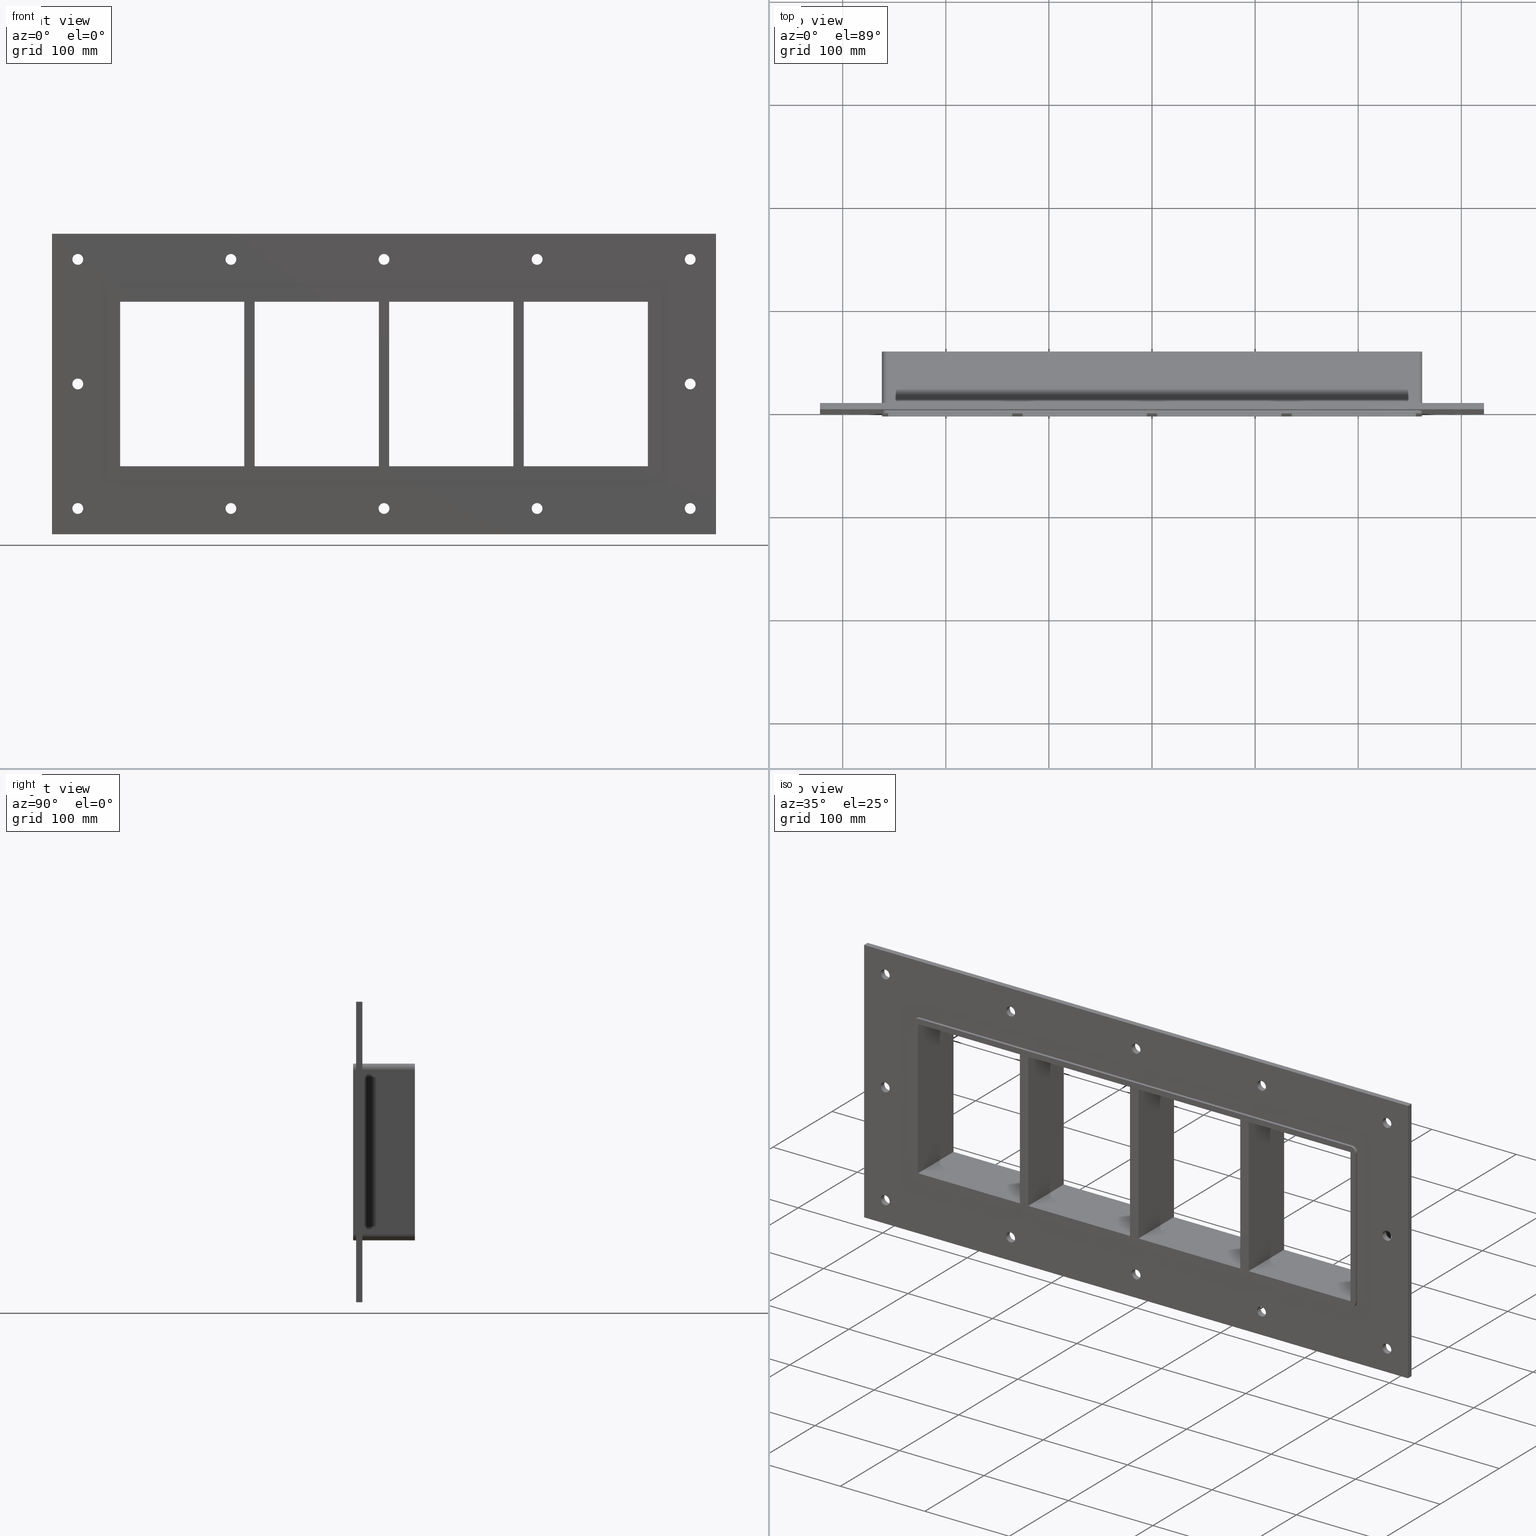
[diagram: canonical four-view strip — front | top / right | iso, engineering-drawing reading convention]
A machine part, canonical four-view strip (front | top / right | iso — engineering-drawing reading convention). The complete STEP part file that produces these views, byte-faithful:
ISO-10303-21;
HEADER;
/****************************************************************
 * Generated by software with PDElib inside                    *
 * PDElib Version v51a, created Wed 11/30/2011                  *
 * ITI Transcendata (http://www.transcendata.com/)              *
 ****************************************************************/
FILE_DESCRIPTION((''),'2;1');
FILE_NAME('L:\\roxtec-se\\Projects\\Ongoing_Projects\\12403 Transit Designer\\Product-data\\Product Data\\Transit designer Cad Generator\\CreatedFiles\\STEP\\GH4X4.stp','2015-01-13T14:12:58',(''),(''),'Autodesk Inventor 2013','Autodesk Inventor 2013','');
FILE_SCHEMA(('AUTOMOTIVE_DESIGN { 1 0 10303 214 1 1 1 1 }'));
ENDSEC;
DATA;
#5=APPLICATION_CONTEXT('automotive design');
#6=APPLICATION_PROTOCOL_DEFINITION('International Standard','automotive_design',2001,#5);
#7=PRODUCT_CONTEXT('',#5,'mechanical');
#8=PRODUCT('GH-ISO','GH-ISO',$,(#7));
#9=PRODUCT_RELATED_PRODUCT_CATEGORY('part',$,(#8));
#10=PRODUCT_DEFINITION_FORMATION('',$,#8);
#11=PRODUCT_DEFINITION_CONTEXT('part definition',#5,'design');
#12=PRODUCT_DEFINITION('',$,#10,#11);
#18=(NAMED_UNIT(*)PLANE_ANGLE_UNIT()SI_UNIT($,.RADIAN.));
#19=DIMENSIONAL_EXPONENTS(0.0,0.0,0.0,0.0,0.0,0.0,0.0);
#20=PLANE_ANGLE_MEASURE_WITH_UNIT(PLANE_ANGLE_MEASURE(0.0174532925),#18);
#24=(CONVERSION_BASED_UNIT('DEGREE',#20)NAMED_UNIT(#19)PLANE_ANGLE_UNIT());
#28=(NAMED_UNIT(*)SI_UNIT($,.STERADIAN.)SOLID_ANGLE_UNIT());
#32=(LENGTH_UNIT()NAMED_UNIT(*)SI_UNIT(.MILLI.,.METRE.));
#34=UNCERTAINTY_MEASURE_WITH_UNIT(LENGTH_MEASURE(0.01),#32,'DISTANCE_ACCURACY_VALUE','');
#36=(GEOMETRIC_REPRESENTATION_CONTEXT(3)GLOBAL_UNCERTAINTY_ASSIGNED_CONTEXT((#34))GLOBAL_UNIT_ASSIGNED_CONTEXT((#24,#28,#32))REPRESENTATION_CONTEXT('None','None'));
#37=AXIS2_PLACEMENT_3D('',#38,#39,#40);
#38=CARTESIAN_POINT('',(0.0,0.0,0.0));
#39=DIRECTION('',(0.0,0.0,1.0));
#40=DIRECTION('',(1.0,0.0,0.0));
#41=SHAPE_REPRESENTATION('',(#37),#36);
#42=PRODUCT_DEFINITION_SHAPE('','',#12);
#43=SHAPE_DEFINITION_REPRESENTATION(#42,#41);
#49=(NAMED_UNIT(*)PLANE_ANGLE_UNIT()SI_UNIT($,.RADIAN.));
#50=DIMENSIONAL_EXPONENTS(0.0,0.0,0.0,0.0,0.0,0.0,0.0);
#51=PLANE_ANGLE_MEASURE_WITH_UNIT(PLANE_ANGLE_MEASURE(0.0174532925),#49);
#55=(CONVERSION_BASED_UNIT('DEGREE',#51)NAMED_UNIT(#50)PLANE_ANGLE_UNIT());
#59=(NAMED_UNIT(*)SI_UNIT($,.STERADIAN.)SOLID_ANGLE_UNIT());
#63=(LENGTH_UNIT()NAMED_UNIT(*)SI_UNIT(.MILLI.,.METRE.));
#65=UNCERTAINTY_MEASURE_WITH_UNIT(LENGTH_MEASURE(0.000001),#63,'DISTANCE_ACCURACY_VALUE','');
#67=(GEOMETRIC_REPRESENTATION_CONTEXT(3)GLOBAL_UNCERTAINTY_ASSIGNED_CONTEXT((#65))GLOBAL_UNIT_ASSIGNED_CONTEXT((#55,#59,#63))REPRESENTATION_CONTEXT('','3D'));
#68=CARTESIAN_POINT('',(-297.00000000000011,709.44221047242468,-120.74999999999997));
#69=DIRECTION('',(0.0,-1.0,0.0));
#70=DIRECTION('',(1.0,0.0,0.0));
#71=AXIS2_PLACEMENT_3D('',#68,#69,#70);
#72=CYLINDRICAL_SURFACE('',#71,5.25);
#73=CARTESIAN_POINT('',(-302.25000000000011,5.999999999999943,-120.74999999999997));
#74=VERTEX_POINT('',#73);
#75=CARTESIAN_POINT('',(-297.00000000000011,5.999999999999943,-120.74999999999997));
#76=DIRECTION('',(0.0,-1.0,0.0));
#77=DIRECTION('',(1.0,0.0,0.0));
#78=AXIS2_PLACEMENT_3D('',#75,#76,#77);
#79=CIRCLE('',#78,5.25);
#80=EDGE_CURVE('',#74,#74,#79,.T.);
#81=ORIENTED_EDGE('',*,*,#80,.F.);
#82=EDGE_LOOP('',(#81));
#83=FACE_OUTER_BOUND('',#82,.T.);
#84=CARTESIAN_POINT('',(-291.75000000000011,0.0,-120.74999999999997));
#85=VERTEX_POINT('',#84);
#86=CARTESIAN_POINT('',(-297.00000000000011,0.0,-120.74999999999997));
#87=DIRECTION('',(0.0,1.0,0.0));
#88=DIRECTION('',(1.0,0.0,0.0));
#89=AXIS2_PLACEMENT_3D('',#86,#87,#88);
#90=CIRCLE('',#89,5.25);
#91=EDGE_CURVE('',#85,#85,#90,.T.);
#92=ORIENTED_EDGE('',*,*,#91,.F.);
#93=EDGE_LOOP('',(#92));
#94=FACE_BOUND('',#93,.T.);
#95=ADVANCED_FACE('',(#83,#94),#72,.F.);
#96=CARTESIAN_POINT('',(296.99999999999994,709.44221047242468,0.050000000000008));
#97=DIRECTION('',(0.0,-1.0,0.0));
#98=DIRECTION('',(1.0,0.0,0.0));
#99=AXIS2_PLACEMENT_3D('',#96,#97,#98);
#100=CYLINDRICAL_SURFACE('',#99,5.25);
#101=CARTESIAN_POINT('',(291.75,5.999999999999943,0.050000000000008));
#102=VERTEX_POINT('',#101);
#103=CARTESIAN_POINT('',(296.99999999999994,5.999999999999943,0.050000000000008));
#104=DIRECTION('',(0.0,-1.0,0.0));
#105=DIRECTION('',(1.0,0.0,0.0));
#106=AXIS2_PLACEMENT_3D('',#103,#104,#105);
#107=CIRCLE('',#106,5.25);
#108=EDGE_CURVE('',#102,#102,#107,.T.);
#109=ORIENTED_EDGE('',*,*,#108,.F.);
#110=EDGE_LOOP('',(#109));
#111=FACE_OUTER_BOUND('',#110,.T.);
#112=CARTESIAN_POINT('',(302.24999999999994,0.0,0.050000000000008));
#113=VERTEX_POINT('',#112);
#114=CARTESIAN_POINT('',(296.99999999999994,0.0,0.050000000000008));
#115=DIRECTION('',(0.0,1.0,0.0));
#116=DIRECTION('',(1.0,0.0,0.0));
#117=AXIS2_PLACEMENT_3D('',#114,#115,#116);
#118=CIRCLE('',#117,5.25);
#119=EDGE_CURVE('',#113,#113,#118,.T.);
#120=ORIENTED_EDGE('',*,*,#119,.F.);
#121=EDGE_LOOP('',(#120));
#122=FACE_BOUND('',#121,.T.);
#123=ADVANCED_FACE('',(#111,#122),#100,.F.);
#124=CARTESIAN_POINT('',(-297.00000000000011,709.44221047242468,0.050000000000008));
#125=DIRECTION('',(0.0,-1.0,0.0));
#126=DIRECTION('',(1.0,0.0,0.0));
#127=AXIS2_PLACEMENT_3D('',#124,#125,#126);
#128=CYLINDRICAL_SURFACE('',#127,5.25);
#129=CARTESIAN_POINT('',(-302.25000000000011,5.999999999999943,0.050000000000008));
#130=VERTEX_POINT('',#129);
#131=CARTESIAN_POINT('',(-297.00000000000011,5.999999999999943,0.050000000000008));
#132=DIRECTION('',(0.0,-1.0,0.0));
#133=DIRECTION('',(1.0,0.0,0.0));
#134=AXIS2_PLACEMENT_3D('',#131,#132,#133);
#135=CIRCLE('',#134,5.25);
#136=EDGE_CURVE('',#130,#130,#135,.T.);
#137=ORIENTED_EDGE('',*,*,#136,.F.);
#138=EDGE_LOOP('',(#137));
#139=FACE_OUTER_BOUND('',#138,.T.);
#140=CARTESIAN_POINT('',(-291.75000000000011,0.0,0.050000000000008));
#141=VERTEX_POINT('',#140);
#142=CARTESIAN_POINT('',(-297.00000000000011,0.0,0.050000000000008));
#143=DIRECTION('',(0.0,1.0,0.0));
#144=DIRECTION('',(1.0,0.0,0.0));
#145=AXIS2_PLACEMENT_3D('',#142,#143,#144);
#146=CIRCLE('',#145,5.25);
#147=EDGE_CURVE('',#141,#141,#146,.T.);
#148=ORIENTED_EDGE('',*,*,#147,.F.);
#149=EDGE_LOOP('',(#148));
#150=FACE_BOUND('',#149,.T.);
#151=ADVANCED_FACE('',(#139,#150),#128,.F.);
#152=CARTESIAN_POINT('',(-148.50000000000009,709.44221047242468,120.84999999999999));
#153=DIRECTION('',(0.0,-1.0,0.0));
#154=DIRECTION('',(1.0,0.0,0.0));
#155=AXIS2_PLACEMENT_3D('',#152,#153,#154);
#156=CYLINDRICAL_SURFACE('',#155,5.25);
#157=CARTESIAN_POINT('',(-153.75000000000006,5.999999999999943,120.84999999999999));
#158=VERTEX_POINT('',#157);
#159=CARTESIAN_POINT('',(-148.50000000000009,5.999999999999943,120.84999999999999));
#160=DIRECTION('',(0.0,-1.0,0.0));
#161=DIRECTION('',(1.0,0.0,0.0));
#162=AXIS2_PLACEMENT_3D('',#159,#160,#161);
#163=CIRCLE('',#162,5.25);
#164=EDGE_CURVE('',#158,#158,#163,.T.);
#165=ORIENTED_EDGE('',*,*,#164,.F.);
#166=EDGE_LOOP('',(#165));
#167=FACE_OUTER_BOUND('',#166,.T.);
#168=CARTESIAN_POINT('',(-143.25000000000011,0.0,120.84999999999999));
#169=VERTEX_POINT('',#168);
#170=CARTESIAN_POINT('',(-148.50000000000009,0.0,120.84999999999999));
#171=DIRECTION('',(0.0,1.0,0.0));
#172=DIRECTION('',(1.0,0.0,0.0));
#173=AXIS2_PLACEMENT_3D('',#170,#171,#172);
#174=CIRCLE('',#173,5.25);
#175=EDGE_CURVE('',#169,#169,#174,.T.);
#176=ORIENTED_EDGE('',*,*,#175,.F.);
#177=EDGE_LOOP('',(#176));
#178=FACE_BOUND('',#177,.T.);
#179=ADVANCED_FACE('',(#167,#178),#156,.F.);
#180=CARTESIAN_POINT('',(-148.50000000000009,709.44221047242468,-120.75000000000001));
#181=DIRECTION('',(0.0,-1.0,0.0));
#182=DIRECTION('',(1.0,0.0,0.0));
#183=AXIS2_PLACEMENT_3D('',#180,#181,#182);
#184=CYLINDRICAL_SURFACE('',#183,5.25);
#185=CARTESIAN_POINT('',(-153.75000000000006,5.999999999999943,-120.75000000000001));
#186=VERTEX_POINT('',#185);
#187=CARTESIAN_POINT('',(-148.50000000000009,5.999999999999943,-120.75000000000001));
#188=DIRECTION('',(0.0,-1.0,0.0));
#189=DIRECTION('',(1.0,0.0,0.0));
#190=AXIS2_PLACEMENT_3D('',#187,#188,#189);
#191=CIRCLE('',#190,5.25);
#192=EDGE_CURVE('',#186,#186,#191,.T.);
#193=ORIENTED_EDGE('',*,*,#192,.F.);
#194=EDGE_LOOP('',(#193));
#195=FACE_OUTER_BOUND('',#194,.T.);
#196=CARTESIAN_POINT('',(-143.25000000000011,0.0,-120.75000000000001));
#197=VERTEX_POINT('',#196);
#198=CARTESIAN_POINT('',(-148.50000000000009,0.0,-120.75000000000001));
#199=DIRECTION('',(0.0,1.0,0.0));
#200=DIRECTION('',(1.0,0.0,0.0));
#201=AXIS2_PLACEMENT_3D('',#198,#199,#200);
#202=CIRCLE('',#201,5.25);
#203=EDGE_CURVE('',#197,#197,#202,.T.);
#204=ORIENTED_EDGE('',*,*,#203,.F.);
#205=EDGE_LOOP('',(#204));
#206=FACE_BOUND('',#205,.T.);
#207=ADVANCED_FACE('',(#195,#206),#184,.F.);
#208=CARTESIAN_POINT('',(-7.105427E-014,709.44221047242468,120.84999999999999));
#209=DIRECTION('',(0.0,-1.0,0.0));
#210=DIRECTION('',(1.0,0.0,0.0));
#211=AXIS2_PLACEMENT_3D('',#208,#209,#210);
#212=CYLINDRICAL_SURFACE('',#211,5.25);
#213=CARTESIAN_POINT('',(-5.250000000000057,5.999999999999943,120.84999999999999));
#214=VERTEX_POINT('',#213);
#215=CARTESIAN_POINT('',(-7.105427E-014,5.999999999999943,120.84999999999999));
#216=DIRECTION('',(0.0,-1.0,0.0));
#217=DIRECTION('',(1.0,0.0,0.0));
#218=AXIS2_PLACEMENT_3D('',#215,#216,#217);
#219=CIRCLE('',#218,5.25);
#220=EDGE_CURVE('',#214,#214,#219,.T.);
#221=ORIENTED_EDGE('',*,*,#220,.F.);
#222=EDGE_LOOP('',(#221));
#223=FACE_OUTER_BOUND('',#222,.T.);
#224=CARTESIAN_POINT('',(5.249999999999915,0.0,120.84999999999999));
#225=VERTEX_POINT('',#224);
#226=CARTESIAN_POINT('',(-7.105427E-014,0.0,120.84999999999999));
#227=DIRECTION('',(0.0,1.0,0.0));
#228=DIRECTION('',(1.0,0.0,0.0));
#229=AXIS2_PLACEMENT_3D('',#226,#227,#228);
#230=CIRCLE('',#229,5.25);
#231=EDGE_CURVE('',#225,#225,#230,.T.);
#232=ORIENTED_EDGE('',*,*,#231,.F.);
#233=EDGE_LOOP('',(#232));
#234=FACE_BOUND('',#233,.T.);
#235=ADVANCED_FACE('',(#223,#234),#212,.F.);
#236=CARTESIAN_POINT('',(-7.105427E-014,709.44221047242468,-120.75000000000001));
#237=DIRECTION('',(0.0,-1.0,0.0));
#238=DIRECTION('',(1.0,0.0,0.0));
#239=AXIS2_PLACEMENT_3D('',#236,#237,#238);
#240=CYLINDRICAL_SURFACE('',#239,5.25);
#241=CARTESIAN_POINT('',(-5.250000000000057,5.999999999999943,-120.75000000000001));
#242=VERTEX_POINT('',#241);
#243=CARTESIAN_POINT('',(-7.105427E-014,5.999999999999943,-120.75000000000001));
#244=DIRECTION('',(0.0,-1.0,0.0));
#245=DIRECTION('',(1.0,0.0,0.0));
#246=AXIS2_PLACEMENT_3D('',#243,#244,#245);
#247=CIRCLE('',#246,5.25);
#248=EDGE_CURVE('',#242,#242,#247,.T.);
#249=ORIENTED_EDGE('',*,*,#248,.F.);
#250=EDGE_LOOP('',(#249));
#251=FACE_OUTER_BOUND('',#250,.T.);
#252=CARTESIAN_POINT('',(5.249999999999915,0.0,-120.75000000000001));
#253=VERTEX_POINT('',#252);
#254=CARTESIAN_POINT('',(-7.105427E-014,0.0,-120.75000000000001));
#255=DIRECTION('',(0.0,1.0,0.0));
#256=DIRECTION('',(1.0,0.0,0.0));
#257=AXIS2_PLACEMENT_3D('',#254,#255,#256);
#258=CIRCLE('',#257,5.25);
#259=EDGE_CURVE('',#253,#253,#258,.T.);
#260=ORIENTED_EDGE('',*,*,#259,.F.);
#261=EDGE_LOOP('',(#260));
#262=FACE_BOUND('',#261,.T.);
#263=ADVANCED_FACE('',(#251,#262),#240,.F.);
#264=CARTESIAN_POINT('',(148.49999999999994,709.44221047242468,120.84999999999999));
#265=DIRECTION('',(0.0,-1.0,0.0));
#266=DIRECTION('',(1.0,0.0,0.0));
#267=AXIS2_PLACEMENT_3D('',#264,#265,#266);
#268=CYLINDRICAL_SURFACE('',#267,5.25);
#269=CARTESIAN_POINT('',(143.24999999999994,5.999999999999943,120.84999999999999));
#270=VERTEX_POINT('',#269);
#271=CARTESIAN_POINT('',(148.49999999999994,5.999999999999943,120.84999999999999));
#272=DIRECTION('',(0.0,-1.0,0.0));
#273=DIRECTION('',(1.0,0.0,0.0));
#274=AXIS2_PLACEMENT_3D('',#271,#272,#273);
#275=CIRCLE('',#274,5.25);
#276=EDGE_CURVE('',#270,#270,#275,.T.);
#277=ORIENTED_EDGE('',*,*,#276,.F.);
#278=EDGE_LOOP('',(#277));
#279=FACE_OUTER_BOUND('',#278,.T.);
#280=CARTESIAN_POINT('',(153.74999999999994,0.0,120.84999999999999));
#281=VERTEX_POINT('',#280);
#282=CARTESIAN_POINT('',(148.49999999999994,0.0,120.84999999999999));
#283=DIRECTION('',(0.0,1.0,0.0));
#284=DIRECTION('',(1.0,0.0,0.0));
#285=AXIS2_PLACEMENT_3D('',#282,#283,#284);
#286=CIRCLE('',#285,5.25);
#287=EDGE_CURVE('',#281,#281,#286,.T.);
#288=ORIENTED_EDGE('',*,*,#287,.F.);
#289=EDGE_LOOP('',(#288));
#290=FACE_BOUND('',#289,.T.);
#291=ADVANCED_FACE('',(#279,#290),#268,.F.);
#292=CARTESIAN_POINT('',(148.49999999999994,709.44221047242468,-120.75000000000001));
#293=DIRECTION('',(0.0,-1.0,0.0));
#294=DIRECTION('',(1.0,0.0,0.0));
#295=AXIS2_PLACEMENT_3D('',#292,#293,#294);
#296=CYLINDRICAL_SURFACE('',#295,5.25);
#297=CARTESIAN_POINT('',(143.24999999999994,5.999999999999943,-120.75000000000001));
#298=VERTEX_POINT('',#297);
#299=CARTESIAN_POINT('',(148.49999999999994,5.999999999999943,-120.75000000000001));
#300=DIRECTION('',(0.0,-1.0,0.0));
#301=DIRECTION('',(1.0,0.0,0.0));
#302=AXIS2_PLACEMENT_3D('',#299,#300,#301);
#303=CIRCLE('',#302,5.25);
#304=EDGE_CURVE('',#298,#298,#303,.T.);
#305=ORIENTED_EDGE('',*,*,#304,.F.);
#306=EDGE_LOOP('',(#305));
#307=FACE_OUTER_BOUND('',#306,.T.);
#308=CARTESIAN_POINT('',(153.74999999999994,0.0,-120.75000000000001));
#309=VERTEX_POINT('',#308);
#310=CARTESIAN_POINT('',(148.49999999999994,0.0,-120.75000000000001));
#311=DIRECTION('',(0.0,1.0,0.0));
#312=DIRECTION('',(1.0,0.0,0.0));
#313=AXIS2_PLACEMENT_3D('',#310,#311,#312);
#314=CIRCLE('',#313,5.25);
#315=EDGE_CURVE('',#309,#309,#314,.T.);
#316=ORIENTED_EDGE('',*,*,#315,.F.);
#317=EDGE_LOOP('',(#316));
#318=FACE_BOUND('',#317,.T.);
#319=ADVANCED_FACE('',(#307,#318),#296,.F.);
#320=CARTESIAN_POINT('',(296.99999999999994,709.44221047242468,-120.75000000000001));
#321=DIRECTION('',(0.0,-1.0,0.0));
#322=DIRECTION('',(1.0,0.0,0.0));
#323=AXIS2_PLACEMENT_3D('',#320,#321,#322);
#324=CYLINDRICAL_SURFACE('',#323,5.25);
#325=CARTESIAN_POINT('',(291.75,5.999999999999943,-120.75000000000001));
#326=VERTEX_POINT('',#325);
#327=CARTESIAN_POINT('',(296.99999999999994,5.999999999999943,-120.75000000000001));
#328=DIRECTION('',(0.0,-1.0,0.0));
#329=DIRECTION('',(1.0,0.0,0.0));
#330=AXIS2_PLACEMENT_3D('',#327,#328,#329);
#331=CIRCLE('',#330,5.25);
#332=EDGE_CURVE('',#326,#326,#331,.T.);
#333=ORIENTED_EDGE('',*,*,#332,.F.);
#334=EDGE_LOOP('',(#333));
#335=FACE_OUTER_BOUND('',#334,.T.);
#336=CARTESIAN_POINT('',(302.24999999999994,0.0,-120.75000000000001));
#337=VERTEX_POINT('',#336);
#338=CARTESIAN_POINT('',(296.99999999999994,0.0,-120.75000000000001));
#339=DIRECTION('',(0.0,1.0,0.0));
#340=DIRECTION('',(1.0,0.0,0.0));
#341=AXIS2_PLACEMENT_3D('',#338,#339,#340);
#342=CIRCLE('',#341,5.25);
#343=EDGE_CURVE('',#337,#337,#342,.T.);
#344=ORIENTED_EDGE('',*,*,#343,.F.);
#345=EDGE_LOOP('',(#344));
#346=FACE_BOUND('',#345,.T.);
#347=ADVANCED_FACE('',(#335,#346),#324,.F.);
#348=CARTESIAN_POINT('',(-297.00000000000011,709.44221047242468,120.84999999999999));
#349=DIRECTION('',(0.0,-1.0,0.0));
#350=DIRECTION('',(1.0,0.0,0.0));
#351=AXIS2_PLACEMENT_3D('',#348,#349,#350);
#352=CYLINDRICAL_SURFACE('',#351,5.25);
#353=CARTESIAN_POINT('',(-302.25000000000011,5.999999999999943,120.84999999999999));
#354=VERTEX_POINT('',#353);
#355=CARTESIAN_POINT('',(-297.00000000000011,5.999999999999943,120.84999999999999));
#356=DIRECTION('',(0.0,-1.0,0.0));
#357=DIRECTION('',(1.0,0.0,0.0));
#358=AXIS2_PLACEMENT_3D('',#355,#356,#357);
#359=CIRCLE('',#358,5.25);
#360=EDGE_CURVE('',#354,#354,#359,.T.);
#361=ORIENTED_EDGE('',*,*,#360,.F.);
#362=EDGE_LOOP('',(#361));
#363=FACE_OUTER_BOUND('',#362,.T.);
#364=CARTESIAN_POINT('',(-291.75000000000011,0.0,120.84999999999999));
#365=VERTEX_POINT('',#364);
#366=CARTESIAN_POINT('',(-297.00000000000011,0.0,120.84999999999999));
#367=DIRECTION('',(0.0,1.0,0.0));
#368=DIRECTION('',(1.0,0.0,0.0));
#369=AXIS2_PLACEMENT_3D('',#366,#367,#368);
#370=CIRCLE('',#369,5.25);
#371=EDGE_CURVE('',#365,#365,#370,.T.);
#372=ORIENTED_EDGE('',*,*,#371,.F.);
#373=EDGE_LOOP('',(#372));
#374=FACE_BOUND('',#373,.T.);
#375=ADVANCED_FACE('',(#363,#374),#352,.F.);
#376=CARTESIAN_POINT('',(296.99999999999994,709.44221047242468,120.84999999999999));
#377=DIRECTION('',(0.0,-1.0,0.0));
#378=DIRECTION('',(1.0,0.0,0.0));
#379=AXIS2_PLACEMENT_3D('',#376,#377,#378);
#380=CYLINDRICAL_SURFACE('',#379,5.25);
#381=CARTESIAN_POINT('',(291.75,5.999999999999943,120.84999999999999));
#382=VERTEX_POINT('',#381);
#383=CARTESIAN_POINT('',(296.99999999999994,5.999999999999943,120.84999999999999));
#384=DIRECTION('',(0.0,-1.0,0.0));
#385=DIRECTION('',(1.0,0.0,0.0));
#386=AXIS2_PLACEMENT_3D('',#383,#384,#385);
#387=CIRCLE('',#386,5.25);
#388=EDGE_CURVE('',#382,#382,#387,.T.);
#389=ORIENTED_EDGE('',*,*,#388,.F.);
#390=EDGE_LOOP('',(#389));
#391=FACE_OUTER_BOUND('',#390,.T.);
#392=CARTESIAN_POINT('',(302.24999999999994,0.0,120.84999999999999));
#393=VERTEX_POINT('',#392);
#394=CARTESIAN_POINT('',(296.99999999999994,0.0,120.84999999999999));
#395=DIRECTION('',(0.0,1.0,0.0));
#396=DIRECTION('',(1.0,0.0,0.0));
#397=AXIS2_PLACEMENT_3D('',#394,#395,#396);
#398=CIRCLE('',#397,5.25);
#399=EDGE_CURVE('',#393,#393,#398,.T.);
#400=ORIENTED_EDGE('',*,*,#399,.F.);
#401=EDGE_LOOP('',(#400));
#402=FACE_BOUND('',#401,.T.);
#403=ADVANCED_FACE('',(#391,#402),#380,.F.);
#404=CARTESIAN_POINT('',(125.49999999999795,-3.0,-79.750000000000014));
#405=DIRECTION('',(-1.0,0.0,0.0));
#406=DIRECTION('',(0.0,0.0,1.0));
#407=AXIS2_PLACEMENT_3D('',#404,#405,#406);
#408=PLANE('',#407);
#409=CARTESIAN_POINT('',(125.49999999999795,-3.0,-79.750000000000014));
#410=VERTEX_POINT('',#409);
#411=CARTESIAN_POINT('',(125.49999999999791,-3.0,79.750000000000014));
#412=VERTEX_POINT('',#411);
#413=CARTESIAN_POINT('',(125.49999999999795,-3.0,-79.750000000000014));
#414=DIRECTION('',(0.0,0.0,1.0));
#415=VECTOR('',#414,159.50000000000003);
#416=LINE('',#413,#415);
#417=EDGE_CURVE('',#410,#412,#416,.T.);
#418=ORIENTED_EDGE('',*,*,#417,.T.);
#419=CARTESIAN_POINT('',(125.49999999999791,57.0,79.750000000000014));
#420=VERTEX_POINT('',#419);
#421=CARTESIAN_POINT('',(125.4999999999979,57.000000000000007,79.750000000000014));
#422=DIRECTION('',(0.0,-1.0,0.0));
#423=VECTOR('',#422,60.000000000000007);
#424=LINE('',#421,#423);
#425=EDGE_CURVE('',#420,#412,#424,.T.);
#426=ORIENTED_EDGE('',*,*,#425,.F.);
#427=CARTESIAN_POINT('',(125.49999999999795,57.0,-79.750000000000014));
#428=VERTEX_POINT('',#427);
#429=CARTESIAN_POINT('',(125.49999999999795,57.0,-79.750000000000014));
#430=DIRECTION('',(0.0,0.0,1.0));
#431=VECTOR('',#430,159.50000000000003);
#432=LINE('',#429,#431);
#433=EDGE_CURVE('',#428,#420,#432,.T.);
#434=ORIENTED_EDGE('',*,*,#433,.F.);
#435=CARTESIAN_POINT('',(125.49999999999795,-3.0,-79.750000000000014));
#436=DIRECTION('',(0.0,1.0,0.0));
#437=VECTOR('',#436,60.000000000000007);
#438=LINE('',#435,#437);
#439=EDGE_CURVE('',#410,#428,#438,.T.);
#440=ORIENTED_EDGE('',*,*,#439,.F.);
#441=EDGE_LOOP('',(#418,#426,#434,#440));
#442=FACE_OUTER_BOUND('',#441,.T.);
#443=ADVANCED_FACE('',(#442),#408,.T.);
#444=CARTESIAN_POINT('',(135.50000000000728,-3.0,79.750000000000014));
#445=DIRECTION('',(1.0,0.0,0.0));
#446=DIRECTION('',(0.0,0.0,-1.0));
#447=AXIS2_PLACEMENT_3D('',#444,#445,#446);
#448=PLANE('',#447);
#449=CARTESIAN_POINT('',(135.50000000000728,-3.0,79.750000000000014));
#450=VERTEX_POINT('',#449);
#451=CARTESIAN_POINT('',(135.50000000000728,-3.0,-79.749999999987168));
#452=VERTEX_POINT('',#451);
#453=CARTESIAN_POINT('',(135.50000000000728,-3.0,79.750000000000014));
#454=DIRECTION('',(0.0,0.0,-1.0));
#455=VECTOR('',#454,159.49999999998718);
#456=LINE('',#453,#455);
#457=EDGE_CURVE('',#450,#452,#456,.T.);
#458=ORIENTED_EDGE('',*,*,#457,.T.);
#459=CARTESIAN_POINT('',(135.50000000000728,57.0,-79.749999999987168));
#460=VERTEX_POINT('',#459);
#461=CARTESIAN_POINT('',(135.50000000000728,57.000000000000007,-79.750000000000014));
#462=DIRECTION('',(0.0,-1.0,0.0));
#463=VECTOR('',#462,60.000000000000007);
#464=LINE('',#461,#463);
#465=EDGE_CURVE('',#460,#452,#464,.T.);
#466=ORIENTED_EDGE('',*,*,#465,.F.);
#467=CARTESIAN_POINT('',(135.50000000000728,57.0,79.750000000000014));
#468=VERTEX_POINT('',#467);
#469=CARTESIAN_POINT('',(135.50000000000728,57.0,79.750000000000014));
#470=DIRECTION('',(0.0,0.0,-1.0));
#471=VECTOR('',#470,159.49999999998718);
#472=LINE('',#469,#471);
#473=EDGE_CURVE('',#468,#460,#472,.T.);
#474=ORIENTED_EDGE('',*,*,#473,.F.);
#475=CARTESIAN_POINT('',(135.50000000000728,-3.0,79.750000000000014));
#476=DIRECTION('',(0.0,1.0,0.0));
#477=VECTOR('',#476,60.000000000000007);
#478=LINE('',#475,#477);
#479=EDGE_CURVE('',#450,#468,#478,.T.);
#480=ORIENTED_EDGE('',*,*,#479,.F.);
#481=EDGE_LOOP('',(#458,#466,#474,#480));
#482=FACE_OUTER_BOUND('',#481,.T.);
#483=ADVANCED_FACE('',(#482),#448,.T.);
#484=CARTESIAN_POINT('',(-5.000000000002061,-3.0,-79.750000000000014));
#485=DIRECTION('',(-1.0,0.0,0.0));
#486=DIRECTION('',(0.0,0.0,1.0));
#487=AXIS2_PLACEMENT_3D('',#484,#485,#486);
#488=PLANE('',#487);
#489=CARTESIAN_POINT('',(-5.000000000002061,-3.0,-79.750000000000014));
#490=VERTEX_POINT('',#489);
#491=CARTESIAN_POINT('',(-5.000000000002096,-3.0,79.750000000000014));
#492=VERTEX_POINT('',#491);
#493=CARTESIAN_POINT('',(-5.000000000002061,-3.0,-79.750000000000014));
#494=DIRECTION('',(0.0,0.0,1.0));
#495=VECTOR('',#494,159.50000000000003);
#496=LINE('',#493,#495);
#497=EDGE_CURVE('',#490,#492,#496,.T.);
#498=ORIENTED_EDGE('',*,*,#497,.T.);
#499=CARTESIAN_POINT('',(-5.000000000002096,57.0,79.750000000000014));
#500=VERTEX_POINT('',#499);
#501=CARTESIAN_POINT('',(-5.000000000002096,57.000000000000007,79.750000000000014));
#502=DIRECTION('',(0.0,-1.0,0.0));
#503=VECTOR('',#502,60.000000000000007);
#504=LINE('',#501,#503);
#505=EDGE_CURVE('',#500,#492,#504,.T.);
#506=ORIENTED_EDGE('',*,*,#505,.F.);
#507=CARTESIAN_POINT('',(-5.000000000002061,57.0,-79.750000000000014));
#508=VERTEX_POINT('',#507);
#509=CARTESIAN_POINT('',(-5.000000000002061,57.0,-79.750000000000014));
#510=DIRECTION('',(0.0,0.0,1.0));
#511=VECTOR('',#510,159.50000000000003);
#512=LINE('',#509,#511);
#513=EDGE_CURVE('',#508,#500,#512,.T.);
#514=ORIENTED_EDGE('',*,*,#513,.F.);
#515=CARTESIAN_POINT('',(-5.000000000002061,-3.0,-79.750000000000014));
#516=DIRECTION('',(0.0,1.0,0.0));
#517=VECTOR('',#516,60.000000000000007);
#518=LINE('',#515,#517);
#519=EDGE_CURVE('',#490,#508,#518,.T.);
#520=ORIENTED_EDGE('',*,*,#519,.F.);
#521=EDGE_LOOP('',(#498,#506,#514,#520));
#522=FACE_OUTER_BOUND('',#521,.T.);
#523=ADVANCED_FACE('',(#522),#488,.T.);
#524=CARTESIAN_POINT('',(5.000000000007283,-3.0,79.750000000000014));
#525=DIRECTION('',(1.0,0.0,0.0));
#526=DIRECTION('',(0.0,0.0,-1.0));
#527=AXIS2_PLACEMENT_3D('',#524,#525,#526);
#528=PLANE('',#527);
#529=CARTESIAN_POINT('',(5.000000000007283,-3.0,79.750000000000014));
#530=VERTEX_POINT('',#529);
#531=CARTESIAN_POINT('',(5.000000000007283,-3.0,-79.749999999987168));
#532=VERTEX_POINT('',#531);
#533=CARTESIAN_POINT('',(5.000000000007283,-3.0,79.750000000000014));
#534=DIRECTION('',(0.0,0.0,-1.0));
#535=VECTOR('',#534,159.49999999998718);
#536=LINE('',#533,#535);
#537=EDGE_CURVE('',#530,#532,#536,.T.);
#538=ORIENTED_EDGE('',*,*,#537,.T.);
#539=CARTESIAN_POINT('',(5.000000000007283,57.0,-79.749999999987168));
#540=VERTEX_POINT('',#539);
#541=CARTESIAN_POINT('',(5.000000000007283,57.000000000000007,-79.750000000000014));
#542=DIRECTION('',(0.0,-1.0,0.0));
#543=VECTOR('',#542,60.000000000000007);
#544=LINE('',#541,#543);
#545=EDGE_CURVE('',#540,#532,#544,.T.);
#546=ORIENTED_EDGE('',*,*,#545,.F.);
#547=CARTESIAN_POINT('',(5.000000000007283,57.0,79.750000000000014));
#548=VERTEX_POINT('',#547);
#549=CARTESIAN_POINT('',(5.000000000007283,57.0,79.750000000000014));
#550=DIRECTION('',(0.0,0.0,-1.0));
#551=VECTOR('',#550,159.49999999998718);
#552=LINE('',#549,#551);
#553=EDGE_CURVE('',#548,#540,#552,.T.);
#554=ORIENTED_EDGE('',*,*,#553,.F.);
#555=CARTESIAN_POINT('',(5.000000000007283,-3.0,79.750000000000014));
#556=DIRECTION('',(0.0,1.0,0.0));
#557=VECTOR('',#556,60.000000000000007);
#558=LINE('',#555,#557);
#559=EDGE_CURVE('',#530,#548,#558,.T.);
#560=ORIENTED_EDGE('',*,*,#559,.F.);
#561=EDGE_LOOP('',(#538,#546,#554,#560));
#562=FACE_OUTER_BOUND('',#561,.T.);
#563=ADVANCED_FACE('',(#562),#528,.T.);
#564=CARTESIAN_POINT('',(256.00000000000006,0.0,-79.750000000000014));
#565=DIRECTION('',(0.0,0.0,-1.0));
#566=DIRECTION('',(-1.0,0.0,0.0));
#567=AXIS2_PLACEMENT_3D('',#564,#565,#566);
#568=PLANE('',#567);
#569=ORIENTED_EDGE('',*,*,#519,.T.);
#570=CARTESIAN_POINT('',(-125.49999999999272,57.0,-79.749999999987168));
#571=VERTEX_POINT('',#570);
#572=CARTESIAN_POINT('',(-125.49999999999275,57.0,-79.750000000000014));
#573=DIRECTION('',(1.0,0.0,0.0));
#574=VECTOR('',#573,120.49999999999071);
#575=LINE('',#572,#574);
#576=EDGE_CURVE('',#571,#508,#575,.T.);
#577=ORIENTED_EDGE('',*,*,#576,.F.);
#578=CARTESIAN_POINT('',(-125.49999999999272,-3.0,-79.749999999987168));
#579=VERTEX_POINT('',#578);
#580=CARTESIAN_POINT('',(-125.49999999999274,57.000000000000007,-79.750000000000014));
#581=DIRECTION('',(0.0,-1.0,0.0));
#582=VECTOR('',#581,60.000000000000007);
#583=LINE('',#580,#582);
#584=EDGE_CURVE('',#571,#579,#583,.T.);
#585=ORIENTED_EDGE('',*,*,#584,.T.);
#586=CARTESIAN_POINT('',(-5.000000000002046,-3.0,-79.750000000000014));
#587=DIRECTION('',(-1.0,0.0,0.0));
#588=VECTOR('',#587,120.49999999999071);
#589=LINE('',#586,#588);
#590=EDGE_CURVE('',#490,#579,#589,.T.);
#591=ORIENTED_EDGE('',*,*,#590,.F.);
#592=EDGE_LOOP('',(#569,#577,#585,#591));
#593=FACE_OUTER_BOUND('',#592,.T.);
#594=ADVANCED_FACE('',(#593),#568,.F.);
#595=CARTESIAN_POINT('',(256.00000000000006,0.0,-79.750000000000014));
#596=DIRECTION('',(0.0,0.0,-1.0));
#597=DIRECTION('',(-1.0,0.0,0.0));
#598=AXIS2_PLACEMENT_3D('',#595,#596,#597);
#599=PLANE('',#598);
#600=ORIENTED_EDGE('',*,*,#439,.T.);
#601=CARTESIAN_POINT('',(5.00000000000729,57.0,-79.750000000000014));
#602=DIRECTION('',(1.0,0.0,0.0));
#603=VECTOR('',#602,120.49999999999066);
#604=LINE('',#601,#603);
#605=EDGE_CURVE('',#540,#428,#604,.T.);
#606=ORIENTED_EDGE('',*,*,#605,.F.);
#607=ORIENTED_EDGE('',*,*,#545,.T.);
#608=CARTESIAN_POINT('',(125.49999999999795,-3.0,-79.750000000000014));
#609=DIRECTION('',(-1.0,0.0,0.0));
#610=VECTOR('',#609,120.49999999999066);
#611=LINE('',#608,#610);
#612=EDGE_CURVE('',#410,#532,#611,.T.);
#613=ORIENTED_EDGE('',*,*,#612,.F.);
#614=EDGE_LOOP('',(#600,#606,#607,#613));
#615=FACE_OUTER_BOUND('',#614,.T.);
#616=ADVANCED_FACE('',(#615),#599,.F.);
#617=CARTESIAN_POINT('',(256.00000000000006,0.0,-79.750000000000014));
#618=DIRECTION('',(0.0,0.0,-1.0));
#619=DIRECTION('',(-1.0,0.0,0.0));
#620=AXIS2_PLACEMENT_3D('',#617,#618,#619);
#621=PLANE('',#620);
#622=ORIENTED_EDGE('',*,*,#465,.T.);
#623=CARTESIAN_POINT('',(256.00000000000006,-3.0,-79.750000000000014));
#624=VERTEX_POINT('',#623);
#625=CARTESIAN_POINT('',(256.00000000000006,-3.0,-79.750000000000014));
#626=DIRECTION('',(-1.0,0.0,0.0));
#627=VECTOR('',#626,120.49999999999275);
#628=LINE('',#625,#627);
#629=EDGE_CURVE('',#624,#452,#628,.T.);
#630=ORIENTED_EDGE('',*,*,#629,.F.);
#631=CARTESIAN_POINT('',(256.00000000000006,57.0,-79.750000000000014));
#632=VERTEX_POINT('',#631);
#633=CARTESIAN_POINT('',(256.00000000000006,56.999999999999993,-79.750000000000014));
#634=DIRECTION('',(0.0,-1.0,0.0));
#635=VECTOR('',#634,59.999999999999993);
#636=LINE('',#633,#635);
#637=EDGE_CURVE('',#632,#624,#636,.T.);
#638=ORIENTED_EDGE('',*,*,#637,.F.);
#639=CARTESIAN_POINT('',(135.5000000000073,57.0,-79.750000000000014));
#640=DIRECTION('',(1.0,0.0,0.0));
#641=VECTOR('',#640,120.49999999999275);
#642=LINE('',#639,#641);
#643=EDGE_CURVE('',#460,#632,#642,.T.);
#644=ORIENTED_EDGE('',*,*,#643,.F.);
#645=EDGE_LOOP('',(#622,#630,#638,#644));
#646=FACE_OUTER_BOUND('',#645,.T.);
#647=ADVANCED_FACE('',(#646),#621,.F.);
#648=CARTESIAN_POINT('',(-256.00000000000006,0.0,79.750000000000014));
#649=DIRECTION('',(0.0,0.0,1.0));
#650=DIRECTION('',(1.0,0.0,0.0));
#651=AXIS2_PLACEMENT_3D('',#648,#649,#650);
#652=PLANE('',#651);
#653=ORIENTED_EDGE('',*,*,#505,.T.);
#654=CARTESIAN_POINT('',(-125.49999999999272,-3.0,79.750000000000014));
#655=VERTEX_POINT('',#654);
#656=CARTESIAN_POINT('',(-125.49999999999272,-3.0,79.750000000000014));
#657=DIRECTION('',(1.0,0.0,0.0));
#658=VECTOR('',#657,120.49999999999062);
#659=LINE('',#656,#658);
#660=EDGE_CURVE('',#655,#492,#659,.T.);
#661=ORIENTED_EDGE('',*,*,#660,.F.);
#662=CARTESIAN_POINT('',(-125.49999999999272,57.0,79.750000000000014));
#663=VERTEX_POINT('',#662);
#664=CARTESIAN_POINT('',(-125.49999999999274,-3.0,79.750000000000014));
#665=DIRECTION('',(0.0,1.0,0.0));
#666=VECTOR('',#665,60.000000000000007);
#667=LINE('',#664,#666);
#668=EDGE_CURVE('',#655,#663,#667,.T.);
#669=ORIENTED_EDGE('',*,*,#668,.T.);
#670=CARTESIAN_POINT('',(-5.000000000002103,57.0,79.750000000000014));
#671=DIRECTION('',(-1.0,0.0,0.0));
#672=VECTOR('',#671,120.49999999999062);
#673=LINE('',#670,#672);
#674=EDGE_CURVE('',#500,#663,#673,.T.);
#675=ORIENTED_EDGE('',*,*,#674,.F.);
#676=EDGE_LOOP('',(#653,#661,#669,#675));
#677=FACE_OUTER_BOUND('',#676,.T.);
#678=ADVANCED_FACE('',(#677),#652,.F.);
#679=CARTESIAN_POINT('',(-256.00000000000006,0.0,79.750000000000014));
#680=DIRECTION('',(0.0,0.0,1.0));
#681=DIRECTION('',(1.0,0.0,0.0));
#682=AXIS2_PLACEMENT_3D('',#679,#680,#681);
#683=PLANE('',#682);
#684=ORIENTED_EDGE('',*,*,#479,.T.);
#685=CARTESIAN_POINT('',(256.00000000000006,57.0,79.750000000000014));
#686=VERTEX_POINT('',#685);
#687=CARTESIAN_POINT('',(256.0,57.0,79.750000000000014));
#688=DIRECTION('',(-1.0,0.0,0.0));
#689=VECTOR('',#688,120.4999999999927);
#690=LINE('',#687,#689);
#691=EDGE_CURVE('',#686,#468,#690,.T.);
#692=ORIENTED_EDGE('',*,*,#691,.F.);
#693=CARTESIAN_POINT('',(256.00000000000006,-3.0,79.750000000000014));
#694=VERTEX_POINT('',#693);
#695=CARTESIAN_POINT('',(256.00000000000006,-3.0,79.750000000000014));
#696=DIRECTION('',(0.0,1.0,0.0));
#697=VECTOR('',#696,60.0);
#698=LINE('',#695,#697);
#699=EDGE_CURVE('',#694,#686,#698,.T.);
#700=ORIENTED_EDGE('',*,*,#699,.F.);
#701=CARTESIAN_POINT('',(135.5000000000073,-3.0,79.750000000000014));
#702=DIRECTION('',(1.0,0.0,0.0));
#703=VECTOR('',#702,120.4999999999927);
#704=LINE('',#701,#703);
#705=EDGE_CURVE('',#450,#694,#704,.T.);
#706=ORIENTED_EDGE('',*,*,#705,.F.);
#707=EDGE_LOOP('',(#684,#692,#700,#706));
#708=FACE_OUTER_BOUND('',#707,.T.);
#709=ADVANCED_FACE('',(#708),#683,.F.);
#710=CARTESIAN_POINT('',(-256.00000000000006,0.0,79.750000000000014));
#711=DIRECTION('',(0.0,0.0,1.0));
#712=DIRECTION('',(1.0,0.0,0.0));
#713=AXIS2_PLACEMENT_3D('',#710,#711,#712);
#714=PLANE('',#713);
#715=ORIENTED_EDGE('',*,*,#425,.T.);
#716=CARTESIAN_POINT('',(5.000000000007276,-3.0,79.750000000000014));
#717=DIRECTION('',(1.0,0.0,0.0));
#718=VECTOR('',#717,120.49999999999065);
#719=LINE('',#716,#718);
#720=EDGE_CURVE('',#530,#412,#719,.T.);
#721=ORIENTED_EDGE('',*,*,#720,.F.);
#722=ORIENTED_EDGE('',*,*,#559,.T.);
#723=CARTESIAN_POINT('',(125.49999999999793,57.0,79.750000000000014));
#724=DIRECTION('',(-1.0,0.0,0.0));
#725=VECTOR('',#724,120.49999999999065);
#726=LINE('',#723,#725);
#727=EDGE_CURVE('',#420,#548,#726,.T.);
#728=ORIENTED_EDGE('',*,*,#727,.F.);
#729=EDGE_LOOP('',(#715,#721,#722,#728));
#730=FACE_OUTER_BOUND('',#729,.T.);
#731=ADVANCED_FACE('',(#730),#714,.F.);
#732=CARTESIAN_POINT('',(-135.50000000000207,-3.0,-79.750000000000014));
#733=DIRECTION('',(-1.0,0.0,0.0));
#734=DIRECTION('',(0.0,0.0,1.0));
#735=AXIS2_PLACEMENT_3D('',#732,#733,#734);
#736=PLANE('',#735);
#737=CARTESIAN_POINT('',(-135.50000000000207,-3.0,-79.750000000000014));
#738=VERTEX_POINT('',#737);
#739=CARTESIAN_POINT('',(-135.5000000000021,-3.0,79.750000000000014));
#740=VERTEX_POINT('',#739);
#741=CARTESIAN_POINT('',(-135.50000000000207,-3.0,-79.750000000000014));
#742=DIRECTION('',(0.0,0.0,1.0));
#743=VECTOR('',#742,159.50000000000003);
#744=LINE('',#741,#743);
#745=EDGE_CURVE('',#738,#740,#744,.T.);
#746=ORIENTED_EDGE('',*,*,#745,.T.);
#747=CARTESIAN_POINT('',(-135.5000000000021,57.0,79.750000000000014));
#748=VERTEX_POINT('',#747);
#749=CARTESIAN_POINT('',(-135.5000000000021,57.000000000000007,79.750000000000014));
#750=DIRECTION('',(0.0,-1.0,0.0));
#751=VECTOR('',#750,60.000000000000007);
#752=LINE('',#749,#751);
#753=EDGE_CURVE('',#748,#740,#752,.T.);
#754=ORIENTED_EDGE('',*,*,#753,.F.);
#755=CARTESIAN_POINT('',(-135.50000000000207,57.0,-79.750000000000014));
#756=VERTEX_POINT('',#755);
#757=CARTESIAN_POINT('',(-135.50000000000207,57.0,-79.750000000000014));
#758=DIRECTION('',(0.0,0.0,1.0));
#759=VECTOR('',#758,159.50000000000003);
#760=LINE('',#757,#759);
#761=EDGE_CURVE('',#756,#748,#760,.T.);
#762=ORIENTED_EDGE('',*,*,#761,.F.);
#763=CARTESIAN_POINT('',(-135.50000000000207,-3.0,-79.750000000000014));
#764=DIRECTION('',(0.0,1.0,0.0));
#765=VECTOR('',#764,60.000000000000007);
#766=LINE('',#763,#765);
#767=EDGE_CURVE('',#738,#756,#766,.T.);
#768=ORIENTED_EDGE('',*,*,#767,.F.);
#769=EDGE_LOOP('',(#746,#754,#762,#768));
#770=FACE_OUTER_BOUND('',#769,.T.);
#771=ADVANCED_FACE('',(#770),#736,.T.);
#772=CARTESIAN_POINT('',(-125.49999999999272,-3.0,79.750000000000014));
#773=DIRECTION('',(1.0,0.0,0.0));
#774=DIRECTION('',(0.0,0.0,-1.0));
#775=AXIS2_PLACEMENT_3D('',#772,#773,#774);
#776=PLANE('',#775);
#777=CARTESIAN_POINT('',(-125.49999999999272,-3.0,79.750000000000014));
#778=DIRECTION('',(0.0,0.0,-1.0));
#779=VECTOR('',#778,159.49999999998718);
#780=LINE('',#777,#779);
#781=EDGE_CURVE('',#655,#579,#780,.T.);
#782=ORIENTED_EDGE('',*,*,#781,.T.);
#783=ORIENTED_EDGE('',*,*,#584,.F.);
#784=CARTESIAN_POINT('',(-125.49999999999272,57.0,79.750000000000014));
#785=DIRECTION('',(0.0,0.0,-1.0));
#786=VECTOR('',#785,159.49999999998718);
#787=LINE('',#784,#786);
#788=EDGE_CURVE('',#663,#571,#787,.T.);
#789=ORIENTED_EDGE('',*,*,#788,.F.);
#790=ORIENTED_EDGE('',*,*,#668,.F.);
#791=EDGE_LOOP('',(#782,#783,#789,#790));
#792=FACE_OUTER_BOUND('',#791,.T.);
#793=ADVANCED_FACE('',(#792),#776,.T.);
#794=CARTESIAN_POINT('',(256.00000000000006,0.0,-79.750000000000014));
#795=DIRECTION('',(0.0,0.0,-1.0));
#796=DIRECTION('',(-1.0,0.0,0.0));
#797=AXIS2_PLACEMENT_3D('',#794,#795,#796);
#798=PLANE('',#797);
#799=ORIENTED_EDGE('',*,*,#767,.T.);
#800=CARTESIAN_POINT('',(-256.00000000000006,57.0,-79.750000000000014));
#801=VERTEX_POINT('',#800);
#802=CARTESIAN_POINT('',(-256.0,57.0,-79.750000000000014));
#803=DIRECTION('',(1.0,0.0,0.0));
#804=VECTOR('',#803,120.49999999999798);
#805=LINE('',#802,#804);
#806=EDGE_CURVE('',#801,#756,#805,.T.);
#807=ORIENTED_EDGE('',*,*,#806,.F.);
#808=CARTESIAN_POINT('',(-256.00000000000006,-3.0,-79.750000000000014));
#809=VERTEX_POINT('',#808);
#810=CARTESIAN_POINT('',(-256.00000000000006,-3.0,-79.750000000000014));
#811=DIRECTION('',(0.0,1.0,0.0));
#812=VECTOR('',#811,60.0);
#813=LINE('',#810,#812);
#814=EDGE_CURVE('',#809,#801,#813,.T.);
#815=ORIENTED_EDGE('',*,*,#814,.F.);
#816=CARTESIAN_POINT('',(-135.50000000000202,-3.0,-79.750000000000014));
#817=DIRECTION('',(-1.0,0.0,0.0));
#818=VECTOR('',#817,120.49999999999798);
#819=LINE('',#816,#818);
#820=EDGE_CURVE('',#738,#809,#819,.T.);
#821=ORIENTED_EDGE('',*,*,#820,.F.);
#822=EDGE_LOOP('',(#799,#807,#815,#821));
#823=FACE_OUTER_BOUND('',#822,.T.);
#824=ADVANCED_FACE('',(#823),#798,.F.);
#825=CARTESIAN_POINT('',(-256.00000000000006,0.0,79.750000000000014));
#826=DIRECTION('',(0.0,0.0,1.0));
#827=DIRECTION('',(1.0,0.0,0.0));
#828=AXIS2_PLACEMENT_3D('',#825,#826,#827);
#829=PLANE('',#828);
#830=ORIENTED_EDGE('',*,*,#753,.T.);
#831=CARTESIAN_POINT('',(-256.00000000000006,-3.0,79.750000000000014));
#832=VERTEX_POINT('',#831);
#833=CARTESIAN_POINT('',(-256.00000000000006,-3.0,79.750000000000014));
#834=DIRECTION('',(1.0,0.0,0.0));
#835=VECTOR('',#834,120.49999999999795);
#836=LINE('',#833,#835);
#837=EDGE_CURVE('',#832,#740,#836,.T.);
#838=ORIENTED_EDGE('',*,*,#837,.F.);
#839=CARTESIAN_POINT('',(-256.00000000000006,57.0,79.750000000000014));
#840=VERTEX_POINT('',#839);
#841=CARTESIAN_POINT('',(-256.00000000000006,-3.0,79.750000000000014));
#842=DIRECTION('',(0.0,1.0,0.0));
#843=VECTOR('',#842,60.0);
#844=LINE('',#841,#843);
#845=EDGE_CURVE('',#832,#840,#844,.T.);
#846=ORIENTED_EDGE('',*,*,#845,.T.);
#847=CARTESIAN_POINT('',(-135.5000000000021,57.0,79.750000000000014));
#848=DIRECTION('',(-1.0,0.0,0.0));
#849=VECTOR('',#848,120.49999999999795);
#850=LINE('',#847,#849);
#851=EDGE_CURVE('',#748,#840,#850,.T.);
#852=ORIENTED_EDGE('',*,*,#851,.F.);
#853=EDGE_LOOP('',(#830,#838,#846,#852));
#854=FACE_OUTER_BOUND('',#853,.T.);
#855=ADVANCED_FACE('',(#854),#829,.F.);
#856=CARTESIAN_POINT('',(0.0,6.000000000000001,0.0));
#857=DIRECTION('',(0.0,1.0,0.0));
#858=DIRECTION('',(0.0,0.0,1.0));
#859=AXIS2_PLACEMENT_3D('',#856,#857,#858);
#860=PLANE('',#859);
#861=CARTESIAN_POINT('',(-322.0,6.000000000000001,145.75));
#862=VERTEX_POINT('',#861);
#863=CARTESIAN_POINT('',(322.0,6.000000000000001,145.75));
#864=VERTEX_POINT('',#863);
#865=CARTESIAN_POINT('',(-322.0,6.000000000000001,145.75));
#866=DIRECTION('',(1.0,0.0,0.0));
#867=VECTOR('',#866,644.0);
#868=LINE('',#865,#867);
#869=EDGE_CURVE('',#862,#864,#868,.T.);
#870=ORIENTED_EDGE('',*,*,#869,.T.);
#871=CARTESIAN_POINT('',(322.0,6.000000000000001,-145.75));
#872=VERTEX_POINT('',#871);
#873=CARTESIAN_POINT('',(322.0,6.000000000000001,145.75));
#874=DIRECTION('',(0.0,0.0,-1.0));
#875=VECTOR('',#874,291.5);
#876=LINE('',#873,#875);
#877=EDGE_CURVE('',#864,#872,#876,.T.);
#878=ORIENTED_EDGE('',*,*,#877,.T.);
#879=CARTESIAN_POINT('',(-322.0,6.000000000000001,-145.75));
#880=VERTEX_POINT('',#879);
#881=CARTESIAN_POINT('',(322.0,6.000000000000001,-145.75));
#882=DIRECTION('',(-1.0,0.0,0.0));
#883=VECTOR('',#882,644.0);
#884=LINE('',#881,#883);
#885=EDGE_CURVE('',#872,#880,#884,.T.);
#886=ORIENTED_EDGE('',*,*,#885,.T.);
#887=CARTESIAN_POINT('',(-322.0,6.000000000000001,-145.75));
#888=DIRECTION('',(0.0,0.0,1.0));
#889=VECTOR('',#888,291.5);
#890=LINE('',#887,#889);
#891=EDGE_CURVE('',#880,#862,#890,.T.);
#892=ORIENTED_EDGE('',*,*,#891,.T.);
#893=EDGE_LOOP('',(#870,#878,#886,#892));
#894=FACE_OUTER_BOUND('',#893,.T.);
#895=ORIENTED_EDGE('',*,*,#80,.T.);
#896=EDGE_LOOP('',(#895));
#897=FACE_BOUND('',#896,.T.);
#898=ORIENTED_EDGE('',*,*,#108,.T.);
#899=EDGE_LOOP('',(#898));
#900=FACE_BOUND('',#899,.T.);
#901=ORIENTED_EDGE('',*,*,#136,.T.);
#902=EDGE_LOOP('',(#901));
#903=FACE_BOUND('',#902,.T.);
#904=ORIENTED_EDGE('',*,*,#164,.T.);
#905=EDGE_LOOP('',(#904));
#906=FACE_BOUND('',#905,.T.);
#907=ORIENTED_EDGE('',*,*,#192,.T.);
#908=EDGE_LOOP('',(#907));
#909=FACE_BOUND('',#908,.T.);
#910=ORIENTED_EDGE('',*,*,#220,.T.);
#911=EDGE_LOOP('',(#910));
#912=FACE_BOUND('',#911,.T.);
#913=ORIENTED_EDGE('',*,*,#248,.T.);
#914=EDGE_LOOP('',(#913));
#915=FACE_BOUND('',#914,.T.);
#916=ORIENTED_EDGE('',*,*,#276,.T.);
#917=EDGE_LOOP('',(#916));
#918=FACE_BOUND('',#917,.T.);
#919=ORIENTED_EDGE('',*,*,#304,.T.);
#920=EDGE_LOOP('',(#919));
#921=FACE_BOUND('',#920,.T.);
#922=ORIENTED_EDGE('',*,*,#332,.T.);
#923=EDGE_LOOP('',(#922));
#924=FACE_BOUND('',#923,.T.);
#925=ORIENTED_EDGE('',*,*,#360,.T.);
#926=EDGE_LOOP('',(#925));
#927=FACE_BOUND('',#926,.T.);
#928=ORIENTED_EDGE('',*,*,#388,.T.);
#929=EDGE_LOOP('',(#928));
#930=FACE_BOUND('',#929,.T.);
#931=CARTESIAN_POINT('',(-256.0,6.000000000000001,-85.750000000000028));
#932=VERTEX_POINT('',#931);
#933=CARTESIAN_POINT('',(-262.0,6.000000000000001,-79.750000000000028));
#934=VERTEX_POINT('',#933);
#935=CARTESIAN_POINT('',(-256.0,6.000000000000001,-79.750000000000028));
#936=DIRECTION('',(0.0,1.0,0.0));
#937=DIRECTION('',(-0.707106781186549,0.0,-0.707106781186546));
#938=AXIS2_PLACEMENT_3D('',#935,#936,#937);
#939=CIRCLE('',#938,6.000000000000001);
#940=EDGE_CURVE('',#932,#934,#939,.T.);
#941=ORIENTED_EDGE('',*,*,#940,.F.);
#942=CARTESIAN_POINT('',(256.0,6.000000000000001,-85.750000000000028));
#943=VERTEX_POINT('',#942);
#944=CARTESIAN_POINT('',(256.0,6.000000000000001,-85.750000000000028));
#945=DIRECTION('',(-1.0,0.0,0.0));
#946=VECTOR('',#945,512.0);
#947=LINE('',#944,#946);
#948=EDGE_CURVE('',#943,#932,#947,.T.);
#949=ORIENTED_EDGE('',*,*,#948,.F.);
#950=CARTESIAN_POINT('',(262.0,6.000000000000001,-79.750000000000028));
#951=VERTEX_POINT('',#950);
#952=CARTESIAN_POINT('',(256.0,6.000000000000001,-79.750000000000028));
#953=DIRECTION('',(0.0,1.0,0.0));
#954=DIRECTION('',(0.707106781186549,0.0,-0.707106781186546));
#955=AXIS2_PLACEMENT_3D('',#952,#953,#954);
#956=CIRCLE('',#955,6.000000000000001);
#957=EDGE_CURVE('',#951,#943,#956,.T.);
#958=ORIENTED_EDGE('',*,*,#957,.F.);
#959=CARTESIAN_POINT('',(262.0,6.000000000000001,79.750000000000028));
#960=VERTEX_POINT('',#959);
#961=CARTESIAN_POINT('',(262.0,6.000000000000001,79.750000000000028));
#962=DIRECTION('',(0.0,0.0,-1.0));
#963=VECTOR('',#962,159.50000000000006);
#964=LINE('',#961,#963);
#965=EDGE_CURVE('',#960,#951,#964,.T.);
#966=ORIENTED_EDGE('',*,*,#965,.F.);
#967=CARTESIAN_POINT('',(256.0,6.000000000000001,85.750000000000028));
#968=VERTEX_POINT('',#967);
#969=CARTESIAN_POINT('',(256.0,6.000000000000001,79.750000000000028));
#970=DIRECTION('',(0.0,1.0,0.0));
#971=DIRECTION('',(0.70710678118655,0.0,0.707106781186545));
#972=AXIS2_PLACEMENT_3D('',#969,#970,#971);
#973=CIRCLE('',#972,6.000000000000001);
#974=EDGE_CURVE('',#968,#960,#973,.T.);
#975=ORIENTED_EDGE('',*,*,#974,.F.);
#976=CARTESIAN_POINT('',(-256.0,6.000000000000001,85.750000000000028));
#977=VERTEX_POINT('',#976);
#978=CARTESIAN_POINT('',(-256.0,6.000000000000001,85.750000000000028));
#979=DIRECTION('',(1.0,0.0,0.0));
#980=VECTOR('',#979,512.0);
#981=LINE('',#978,#980);
#982=EDGE_CURVE('',#977,#968,#981,.T.);
#983=ORIENTED_EDGE('',*,*,#982,.F.);
#984=CARTESIAN_POINT('',(-262.0,6.000000000000001,79.750000000000028));
#985=VERTEX_POINT('',#984);
#986=CARTESIAN_POINT('',(-256.0,6.000000000000001,79.750000000000028));
#987=DIRECTION('',(0.0,1.0,0.0));
#988=DIRECTION('',(-0.707106781186549,0.0,0.707106781186546));
#989=AXIS2_PLACEMENT_3D('',#986,#987,#988);
#990=CIRCLE('',#989,6.000000000000001);
#991=EDGE_CURVE('',#985,#977,#990,.T.);
#992=ORIENTED_EDGE('',*,*,#991,.F.);
#993=CARTESIAN_POINT('',(-262.0,6.000000000000001,-79.750000000000028));
#994=DIRECTION('',(0.0,0.0,1.0));
#995=VECTOR('',#994,159.50000000000006);
#996=LINE('',#993,#995);
#997=EDGE_CURVE('',#934,#985,#996,.T.);
#998=ORIENTED_EDGE('',*,*,#997,.F.);
#999=EDGE_LOOP('',(#941,#949,#958,#966,#975,#983,#992,#998));
#1000=FACE_BOUND('',#999,.T.);
#1001=ADVANCED_FACE('',(#894,#897,#900,#903,#906,#909,#912,#915,#918,#921,#924,#927,#930,#1000),#860,.T.);
#1002=CARTESIAN_POINT('',(0.0,0.0,0.0));
#1003=DIRECTION('',(0.0,1.0,0.0));
#1004=DIRECTION('',(0.0,0.0,1.0));
#1005=AXIS2_PLACEMENT_3D('',#1002,#1003,#1004);
#1006=PLANE('',#1005);
#1007=CARTESIAN_POINT('',(-322.0,0.0,145.75));
#1008=VERTEX_POINT('',#1007);
#1009=CARTESIAN_POINT('',(322.0,0.0,145.75));
#1010=VERTEX_POINT('',#1009);
#1011=CARTESIAN_POINT('',(-322.0,0.0,145.75));
#1012=DIRECTION('',(1.0,0.0,0.0));
#1013=VECTOR('',#1012,644.0);
#1014=LINE('',#1011,#1013);
#1015=EDGE_CURVE('',#1008,#1010,#1014,.T.);
#1016=ORIENTED_EDGE('',*,*,#1015,.F.);
#1017=CARTESIAN_POINT('',(-322.0,0.0,-145.75));
#1018=VERTEX_POINT('',#1017);
#1019=CARTESIAN_POINT('',(-322.0,0.0,-145.75));
#1020=DIRECTION('',(0.0,0.0,1.0));
#1021=VECTOR('',#1020,291.5);
#1022=LINE('',#1019,#1021);
#1023=EDGE_CURVE('',#1018,#1008,#1022,.T.);
#1024=ORIENTED_EDGE('',*,*,#1023,.F.);
#1025=CARTESIAN_POINT('',(322.0,0.0,-145.75));
#1026=VERTEX_POINT('',#1025);
#1027=CARTESIAN_POINT('',(322.0,0.0,-145.75));
#1028=DIRECTION('',(-1.0,0.0,0.0));
#1029=VECTOR('',#1028,644.0);
#1030=LINE('',#1027,#1029);
#1031=EDGE_CURVE('',#1026,#1018,#1030,.T.);
#1032=ORIENTED_EDGE('',*,*,#1031,.F.);
#1033=CARTESIAN_POINT('',(322.0,0.0,145.75));
#1034=DIRECTION('',(0.0,0.0,-1.0));
#1035=VECTOR('',#1034,291.5);
#1036=LINE('',#1033,#1035);
#1037=EDGE_CURVE('',#1010,#1026,#1036,.T.);
#1038=ORIENTED_EDGE('',*,*,#1037,.F.);
#1039=EDGE_LOOP('',(#1016,#1024,#1032,#1038));
#1040=FACE_OUTER_BOUND('',#1039,.T.);
#1041=ORIENTED_EDGE('',*,*,#91,.T.);
#1042=EDGE_LOOP('',(#1041));
#1043=FACE_BOUND('',#1042,.T.);
#1044=ORIENTED_EDGE('',*,*,#119,.T.);
#1045=EDGE_LOOP('',(#1044));
#1046=FACE_BOUND('',#1045,.T.);
#1047=ORIENTED_EDGE('',*,*,#147,.T.);
#1048=EDGE_LOOP('',(#1047));
#1049=FACE_BOUND('',#1048,.T.);
#1050=ORIENTED_EDGE('',*,*,#175,.T.);
#1051=EDGE_LOOP('',(#1050));
#1052=FACE_BOUND('',#1051,.T.);
#1053=ORIENTED_EDGE('',*,*,#203,.T.);
#1054=EDGE_LOOP('',(#1053));
#1055=FACE_BOUND('',#1054,.T.);
#1056=ORIENTED_EDGE('',*,*,#231,.T.);
#1057=EDGE_LOOP('',(#1056));
#1058=FACE_BOUND('',#1057,.T.);
#1059=ORIENTED_EDGE('',*,*,#259,.T.);
#1060=EDGE_LOOP('',(#1059));
#1061=FACE_BOUND('',#1060,.T.);
#1062=ORIENTED_EDGE('',*,*,#287,.T.);
#1063=EDGE_LOOP('',(#1062));
#1064=FACE_BOUND('',#1063,.T.);
#1065=ORIENTED_EDGE('',*,*,#315,.T.);
#1066=EDGE_LOOP('',(#1065));
#1067=FACE_BOUND('',#1066,.T.);
#1068=ORIENTED_EDGE('',*,*,#343,.T.);
#1069=EDGE_LOOP('',(#1068));
#1070=FACE_BOUND('',#1069,.T.);
#1071=ORIENTED_EDGE('',*,*,#371,.T.);
#1072=EDGE_LOOP('',(#1071));
#1073=FACE_BOUND('',#1072,.T.);
#1074=ORIENTED_EDGE('',*,*,#399,.T.);
#1075=EDGE_LOOP('',(#1074));
#1076=FACE_BOUND('',#1075,.T.);
#1077=CARTESIAN_POINT('',(-262.0,0.0,-79.750000000000028));
#1078=VERTEX_POINT('',#1077);
#1079=CARTESIAN_POINT('',(-256.0,0.0,-85.750000000000028));
#1080=VERTEX_POINT('',#1079);
#1081=CARTESIAN_POINT('',(-256.0,0.0,-79.750000000000028));
#1082=DIRECTION('',(0.0,-1.0,0.0));
#1083=DIRECTION('',(-0.707106781186549,0.0,-0.707106781186546));
#1084=AXIS2_PLACEMENT_3D('',#1081,#1082,#1083);
#1085=CIRCLE('',#1084,6.000000000000001);
#1086=EDGE_CURVE('',#1078,#1080,#1085,.T.);
#1087=ORIENTED_EDGE('',*,*,#1086,.F.);
#1088=CARTESIAN_POINT('',(-262.0,0.0,79.750000000000028));
#1089=VERTEX_POINT('',#1088);
#1090=CARTESIAN_POINT('',(-262.0,0.0,79.750000000000014));
#1091=DIRECTION('',(0.0,0.0,-1.0));
#1092=VECTOR('',#1091,159.50000000000006);
#1093=LINE('',#1090,#1092);
#1094=EDGE_CURVE('',#1089,#1078,#1093,.T.);
#1095=ORIENTED_EDGE('',*,*,#1094,.F.);
#1096=CARTESIAN_POINT('',(-256.0,0.0,85.750000000000028));
#1097=VERTEX_POINT('',#1096);
#1098=CARTESIAN_POINT('',(-256.0,0.0,79.750000000000028));
#1099=DIRECTION('',(0.0,-1.0,0.0));
#1100=DIRECTION('',(-0.707106781186549,0.0,0.707106781186546));
#1101=AXIS2_PLACEMENT_3D('',#1098,#1099,#1100);
#1102=CIRCLE('',#1101,6.000000000000001);
#1103=EDGE_CURVE('',#1097,#1089,#1102,.T.);
#1104=ORIENTED_EDGE('',*,*,#1103,.F.);
#1105=CARTESIAN_POINT('',(256.0,0.0,85.750000000000028));
#1106=VERTEX_POINT('',#1105);
#1107=CARTESIAN_POINT('',(256.0,0.0,85.750000000000028));
#1108=DIRECTION('',(-1.0,0.0,0.0));
#1109=VECTOR('',#1108,512.0);
#1110=LINE('',#1107,#1109);
#1111=EDGE_CURVE('',#1106,#1097,#1110,.T.);
#1112=ORIENTED_EDGE('',*,*,#1111,.F.);
#1113=CARTESIAN_POINT('',(262.0,0.0,79.750000000000028));
#1114=VERTEX_POINT('',#1113);
#1115=CARTESIAN_POINT('',(256.0,0.0,79.750000000000028));
#1116=DIRECTION('',(0.0,-1.0,0.0));
#1117=DIRECTION('',(0.70710678118655,0.0,0.707106781186545));
#1118=AXIS2_PLACEMENT_3D('',#1115,#1116,#1117);
#1119=CIRCLE('',#1118,6.000000000000001);
#1120=EDGE_CURVE('',#1114,#1106,#1119,.T.);
#1121=ORIENTED_EDGE('',*,*,#1120,.F.);
#1122=CARTESIAN_POINT('',(262.0,0.0,-79.750000000000028));
#1123=VERTEX_POINT('',#1122);
#1124=CARTESIAN_POINT('',(262.0,0.0,-79.750000000000014));
#1125=DIRECTION('',(0.0,0.0,1.0));
#1126=VECTOR('',#1125,159.50000000000006);
#1127=LINE('',#1124,#1126);
#1128=EDGE_CURVE('',#1123,#1114,#1127,.T.);
#1129=ORIENTED_EDGE('',*,*,#1128,.F.);
#1130=CARTESIAN_POINT('',(256.0,0.0,-85.750000000000028));
#1131=VERTEX_POINT('',#1130);
#1132=CARTESIAN_POINT('',(256.0,0.0,-79.750000000000028));
#1133=DIRECTION('',(0.0,-1.0,0.0));
#1134=DIRECTION('',(0.707106781186549,0.0,-0.707106781186546));
#1135=AXIS2_PLACEMENT_3D('',#1132,#1133,#1134);
#1136=CIRCLE('',#1135,6.000000000000001);
#1137=EDGE_CURVE('',#1131,#1123,#1136,.T.);
#1138=ORIENTED_EDGE('',*,*,#1137,.F.);
#1139=CARTESIAN_POINT('',(-256.0,0.0,-85.750000000000028));
#1140=DIRECTION('',(1.0,0.0,0.0));
#1141=VECTOR('',#1140,512.0);
#1142=LINE('',#1139,#1141);
#1143=EDGE_CURVE('',#1080,#1131,#1142,.T.);
#1144=ORIENTED_EDGE('',*,*,#1143,.F.);
#1145=EDGE_LOOP('',(#1087,#1095,#1104,#1112,#1121,#1129,#1138,#1144));
#1146=FACE_BOUND('',#1145,.T.);
#1147=ADVANCED_FACE('',(#1040,#1043,#1046,#1049,#1052,#1055,#1058,#1061,#1064,#1067,#1070,#1073,#1076,#1146),#1006,.F.);
#1148=CARTESIAN_POINT('',(-322.0,0.0,-145.75));
#1149=DIRECTION('',(-1.0,0.0,0.0));
#1150=DIRECTION('',(0.0,0.0,1.0));
#1151=AXIS2_PLACEMENT_3D('',#1148,#1149,#1150);
#1152=PLANE('',#1151);
#1153=ORIENTED_EDGE('',*,*,#1023,.T.);
#1154=CARTESIAN_POINT('',(-322.0,0.0,145.75));
#1155=DIRECTION('',(0.0,1.0,0.0));
#1156=VECTOR('',#1155,6.000000000000001);
#1157=LINE('',#1154,#1156);
#1158=EDGE_CURVE('',#1008,#862,#1157,.T.);
#1159=ORIENTED_EDGE('',*,*,#1158,.T.);
#1160=ORIENTED_EDGE('',*,*,#891,.F.);
#1161=CARTESIAN_POINT('',(-322.0,0.0,-145.75));
#1162=DIRECTION('',(0.0,1.0,0.0));
#1163=VECTOR('',#1162,6.000000000000001);
#1164=LINE('',#1161,#1163);
#1165=EDGE_CURVE('',#1018,#880,#1164,.T.);
#1166=ORIENTED_EDGE('',*,*,#1165,.F.);
#1167=EDGE_LOOP('',(#1153,#1159,#1160,#1166));
#1168=FACE_OUTER_BOUND('',#1167,.T.);
#1169=ADVANCED_FACE('',(#1168),#1152,.T.);
#1170=CARTESIAN_POINT('',(322.0,0.0,-145.75));
#1171=DIRECTION('',(0.0,0.0,-1.0));
#1172=DIRECTION('',(-1.0,0.0,0.0));
#1173=AXIS2_PLACEMENT_3D('',#1170,#1171,#1172);
#1174=PLANE('',#1173);
#1175=ORIENTED_EDGE('',*,*,#1031,.T.);
#1176=ORIENTED_EDGE('',*,*,#1165,.T.);
#1177=ORIENTED_EDGE('',*,*,#885,.F.);
#1178=CARTESIAN_POINT('',(322.0,0.0,-145.75));
#1179=DIRECTION('',(0.0,1.0,0.0));
#1180=VECTOR('',#1179,6.000000000000001);
#1181=LINE('',#1178,#1180);
#1182=EDGE_CURVE('',#1026,#872,#1181,.T.);
#1183=ORIENTED_EDGE('',*,*,#1182,.F.);
#1184=EDGE_LOOP('',(#1175,#1176,#1177,#1183));
#1185=FACE_OUTER_BOUND('',#1184,.T.);
#1186=ADVANCED_FACE('',(#1185),#1174,.T.);
#1187=CARTESIAN_POINT('',(322.0,0.0,145.75));
#1188=DIRECTION('',(1.0,0.0,0.0));
#1189=DIRECTION('',(0.0,0.0,-1.0));
#1190=AXIS2_PLACEMENT_3D('',#1187,#1188,#1189);
#1191=PLANE('',#1190);
#1192=ORIENTED_EDGE('',*,*,#1037,.T.);
#1193=ORIENTED_EDGE('',*,*,#1182,.T.);
#1194=ORIENTED_EDGE('',*,*,#877,.F.);
#1195=CARTESIAN_POINT('',(322.0,0.0,145.75));
#1196=DIRECTION('',(0.0,1.0,0.0));
#1197=VECTOR('',#1196,6.000000000000001);
#1198=LINE('',#1195,#1197);
#1199=EDGE_CURVE('',#1010,#864,#1198,.T.);
#1200=ORIENTED_EDGE('',*,*,#1199,.F.);
#1201=EDGE_LOOP('',(#1192,#1193,#1194,#1200));
#1202=FACE_OUTER_BOUND('',#1201,.T.);
#1203=ADVANCED_FACE('',(#1202),#1191,.T.);
#1204=CARTESIAN_POINT('',(-322.0,0.0,145.75));
#1205=DIRECTION('',(0.0,0.0,1.0));
#1206=DIRECTION('',(1.0,0.0,0.0));
#1207=AXIS2_PLACEMENT_3D('',#1204,#1205,#1206);
#1208=PLANE('',#1207);
#1209=ORIENTED_EDGE('',*,*,#1015,.T.);
#1210=ORIENTED_EDGE('',*,*,#1199,.T.);
#1211=ORIENTED_EDGE('',*,*,#869,.F.);
#1212=ORIENTED_EDGE('',*,*,#1158,.F.);
#1213=EDGE_LOOP('',(#1209,#1210,#1211,#1212));
#1214=FACE_OUTER_BOUND('',#1213,.T.);
#1215=ADVANCED_FACE('',(#1214),#1208,.T.);
#1216=CARTESIAN_POINT('',(-256.00000000000006,0.0,-79.750000000000014));
#1217=DIRECTION('',(-1.0,0.0,0.0));
#1218=DIRECTION('',(0.0,0.0,1.0));
#1219=AXIS2_PLACEMENT_3D('',#1216,#1217,#1218);
#1220=PLANE('',#1219);
#1221=ORIENTED_EDGE('',*,*,#814,.T.);
#1222=CARTESIAN_POINT('',(-256.00000000000006,57.0,79.750000000000028));
#1223=DIRECTION('',(0.0,0.0,-1.0));
#1224=VECTOR('',#1223,159.50000000000006);
#1225=LINE('',#1222,#1224);
#1226=EDGE_CURVE('',#840,#801,#1225,.T.);
#1227=ORIENTED_EDGE('',*,*,#1226,.F.);
#1228=ORIENTED_EDGE('',*,*,#845,.F.);
#1229=CARTESIAN_POINT('',(-256.00000000000006,-3.0,-79.750000000000014));
#1230=DIRECTION('',(0.0,0.0,1.0));
#1231=VECTOR('',#1230,159.50000000000006);
#1232=LINE('',#1229,#1231);
#1233=EDGE_CURVE('',#809,#832,#1232,.T.);
#1234=ORIENTED_EDGE('',*,*,#1233,.F.);
#1235=EDGE_LOOP('',(#1221,#1227,#1228,#1234));
#1236=FACE_OUTER_BOUND('',#1235,.T.);
#1237=ADVANCED_FACE('',(#1236),#1220,.F.);
#1238=CARTESIAN_POINT('',(256.0,0.0,79.750000000000028));
#1239=DIRECTION('',(0.0,-1.0,0.0));
#1240=DIRECTION('',(0.70710678118655,0.0,0.707106781186545));
#1241=AXIS2_PLACEMENT_3D('',#1238,#1239,#1240);
#1242=CYLINDRICAL_SURFACE('',#1241,6.000000000000001);
#1243=ORIENTED_EDGE('',*,*,#1120,.T.);
#1244=CARTESIAN_POINT('',(256.0,-3.0,85.750000000000028));
#1245=VERTEX_POINT('',#1244);
#1246=CARTESIAN_POINT('',(256.0,0.0,85.750000000000028));
#1247=DIRECTION('',(0.0,-1.0,0.0));
#1248=VECTOR('',#1247,3.0);
#1249=LINE('',#1246,#1248);
#1250=EDGE_CURVE('',#1106,#1245,#1249,.T.);
#1251=ORIENTED_EDGE('',*,*,#1250,.T.);
#1252=CARTESIAN_POINT('',(262.0,-3.0,79.750000000000028));
#1253=VERTEX_POINT('',#1252);
#1254=CARTESIAN_POINT('',(256.0,-3.0,79.750000000000028));
#1255=DIRECTION('',(0.0,1.0,0.0));
#1256=DIRECTION('',(0.70710678118655,0.0,0.707106781186545));
#1257=AXIS2_PLACEMENT_3D('',#1254,#1255,#1256);
#1258=CIRCLE('',#1257,6.000000000000001);
#1259=EDGE_CURVE('',#1245,#1253,#1258,.T.);
#1260=ORIENTED_EDGE('',*,*,#1259,.T.);
#1261=CARTESIAN_POINT('',(262.0,-3.0,79.750000000000028));
#1262=DIRECTION('',(0.0,1.0,0.0));
#1263=VECTOR('',#1262,3.0);
#1264=LINE('',#1261,#1263);
#1265=EDGE_CURVE('',#1253,#1114,#1264,.T.);
#1266=ORIENTED_EDGE('',*,*,#1265,.T.);
#1267=EDGE_LOOP('',(#1243,#1251,#1260,#1266));
#1268=FACE_OUTER_BOUND('',#1267,.T.);
#1269=ADVANCED_FACE('',(#1268),#1242,.T.);
#1270=CARTESIAN_POINT('',(256.0,0.0,79.750000000000028));
#1271=DIRECTION('',(0.0,-1.0,0.0));
#1272=DIRECTION('',(0.70710678118655,0.0,0.707106781186545));
#1273=AXIS2_PLACEMENT_3D('',#1270,#1271,#1272);
#1274=CYLINDRICAL_SURFACE('',#1273,6.000000000000001);
#1275=ORIENTED_EDGE('',*,*,#974,.T.);
#1276=CARTESIAN_POINT('',(262.0,57.0,79.750000000000028));
#1277=VERTEX_POINT('',#1276);
#1278=CARTESIAN_POINT('',(262.0,6.000000000000001,79.750000000000028));
#1279=DIRECTION('',(0.0,1.0,0.0));
#1280=VECTOR('',#1279,51.0);
#1281=LINE('',#1278,#1280);
#1282=EDGE_CURVE('',#960,#1277,#1281,.T.);
#1283=ORIENTED_EDGE('',*,*,#1282,.T.);
#1284=CARTESIAN_POINT('',(256.0,57.0,85.750000000000028));
#1285=VERTEX_POINT('',#1284);
#1286=CARTESIAN_POINT('',(256.0,57.0,79.750000000000028));
#1287=DIRECTION('',(0.0,-1.0,0.0));
#1288=DIRECTION('',(0.70710678118655,0.0,0.707106781186545));
#1289=AXIS2_PLACEMENT_3D('',#1286,#1287,#1288);
#1290=CIRCLE('',#1289,6.000000000000001);
#1291=EDGE_CURVE('',#1277,#1285,#1290,.T.);
#1292=ORIENTED_EDGE('',*,*,#1291,.T.);
#1293=CARTESIAN_POINT('',(256.0,57.0,85.750000000000028));
#1294=DIRECTION('',(0.0,-1.0,0.0));
#1295=VECTOR('',#1294,51.0);
#1296=LINE('',#1293,#1295);
#1297=EDGE_CURVE('',#1285,#968,#1296,.T.);
#1298=ORIENTED_EDGE('',*,*,#1297,.T.);
#1299=EDGE_LOOP('',(#1275,#1283,#1292,#1298));
#1300=FACE_OUTER_BOUND('',#1299,.T.);
#1301=ADVANCED_FACE('',(#1300),#1274,.T.);
#1302=CARTESIAN_POINT('',(262.0,0.0,85.750000000000028));
#1303=DIRECTION('',(1.0,0.0,0.0));
#1304=DIRECTION('',(0.0,0.0,-1.0));
#1305=AXIS2_PLACEMENT_3D('',#1302,#1303,#1304);
#1306=PLANE('',#1305);
#1307=ORIENTED_EDGE('',*,*,#1128,.T.);
#1308=ORIENTED_EDGE('',*,*,#1265,.F.);
#1309=CARTESIAN_POINT('',(262.0,-3.0,-79.750000000000014));
#1310=VERTEX_POINT('',#1309);
#1311=CARTESIAN_POINT('',(262.0,-3.0,-79.750000000000028));
#1312=DIRECTION('',(0.0,0.0,1.0));
#1313=VECTOR('',#1312,159.50000000000006);
#1314=LINE('',#1311,#1313);
#1315=EDGE_CURVE('',#1310,#1253,#1314,.T.);
#1316=ORIENTED_EDGE('',*,*,#1315,.F.);
#1317=CARTESIAN_POINT('',(262.0,0.0,-79.750000000000028));
#1318=DIRECTION('',(0.0,-1.0,0.0));
#1319=VECTOR('',#1318,3.0);
#1320=LINE('',#1317,#1319);
#1321=EDGE_CURVE('',#1123,#1310,#1320,.T.);
#1322=ORIENTED_EDGE('',*,*,#1321,.F.);
#1323=EDGE_LOOP('',(#1307,#1308,#1316,#1322));
#1324=FACE_OUTER_BOUND('',#1323,.T.);
#1325=ADVANCED_FACE('',(#1324),#1306,.T.);
#1326=CARTESIAN_POINT('',(262.0,0.0,85.750000000000028));
#1327=DIRECTION('',(1.0,0.0,0.0));
#1328=DIRECTION('',(0.0,0.0,-1.0));
#1329=AXIS2_PLACEMENT_3D('',#1326,#1327,#1328);
#1330=PLANE('',#1329);
#1331=ORIENTED_EDGE('',*,*,#965,.T.);
#1332=CARTESIAN_POINT('',(262.0,57.0,-79.750000000000014));
#1333=VERTEX_POINT('',#1332);
#1334=CARTESIAN_POINT('',(262.0,57.0,-79.750000000000028));
#1335=DIRECTION('',(0.0,-1.0,0.0));
#1336=VECTOR('',#1335,51.0);
#1337=LINE('',#1334,#1336);
#1338=EDGE_CURVE('',#1333,#951,#1337,.T.);
#1339=ORIENTED_EDGE('',*,*,#1338,.F.);
#1340=CARTESIAN_POINT('',(262.0,57.0,79.750000000000028));
#1341=DIRECTION('',(0.0,0.0,-1.0));
#1342=VECTOR('',#1341,159.50000000000006);
#1343=LINE('',#1340,#1342);
#1344=EDGE_CURVE('',#1277,#1333,#1343,.T.);
#1345=ORIENTED_EDGE('',*,*,#1344,.F.);
#1346=ORIENTED_EDGE('',*,*,#1282,.F.);
#1347=EDGE_LOOP('',(#1331,#1339,#1345,#1346));
#1348=FACE_OUTER_BOUND('',#1347,.T.);
#1349=ADVANCED_FACE('',(#1348),#1330,.T.);
#1350=CARTESIAN_POINT('',(-262.0,0.0,85.750000000000028));
#1351=DIRECTION('',(0.0,0.0,1.0));
#1352=DIRECTION('',(1.0,0.0,0.0));
#1353=AXIS2_PLACEMENT_3D('',#1350,#1351,#1352);
#1354=PLANE('',#1353);
#1355=ORIENTED_EDGE('',*,*,#1111,.T.);
#1356=CARTESIAN_POINT('',(-256.0,-3.0,85.750000000000028));
#1357=VERTEX_POINT('',#1356);
#1358=CARTESIAN_POINT('',(-256.0,-3.0,85.750000000000028));
#1359=DIRECTION('',(0.0,1.0,0.0));
#1360=VECTOR('',#1359,3.0);
#1361=LINE('',#1358,#1360);
#1362=EDGE_CURVE('',#1357,#1097,#1361,.T.);
#1363=ORIENTED_EDGE('',*,*,#1362,.F.);
#1364=CARTESIAN_POINT('',(256.0,-3.0,85.750000000000028));
#1365=DIRECTION('',(-1.0,0.0,0.0));
#1366=VECTOR('',#1365,512.0);
#1367=LINE('',#1364,#1366);
#1368=EDGE_CURVE('',#1245,#1357,#1367,.T.);
#1369=ORIENTED_EDGE('',*,*,#1368,.F.);
#1370=ORIENTED_EDGE('',*,*,#1250,.F.);
#1371=EDGE_LOOP('',(#1355,#1363,#1369,#1370));
#1372=FACE_OUTER_BOUND('',#1371,.T.);
#1373=ADVANCED_FACE('',(#1372),#1354,.T.);
#1374=CARTESIAN_POINT('',(256.0,0.0,-79.750000000000028));
#1375=DIRECTION('',(0.0,1.0,0.0));
#1376=DIRECTION('',(0.707106781186549,0.0,-0.707106781186546));
#1377=AXIS2_PLACEMENT_3D('',#1374,#1375,#1376);
#1378=CYLINDRICAL_SURFACE('',#1377,6.000000000000001);
#1379=ORIENTED_EDGE('',*,*,#1137,.T.);
#1380=ORIENTED_EDGE('',*,*,#1321,.T.);
#1381=CARTESIAN_POINT('',(256.0,-3.0,-85.750000000000028));
#1382=VERTEX_POINT('',#1381);
#1383=CARTESIAN_POINT('',(256.0,-3.0,-79.750000000000028));
#1384=DIRECTION('',(0.0,1.0,0.0));
#1385=DIRECTION('',(0.707106781186549,0.0,-0.707106781186546));
#1386=AXIS2_PLACEMENT_3D('',#1383,#1384,#1385);
#1387=CIRCLE('',#1386,6.000000000000001);
#1388=EDGE_CURVE('',#1310,#1382,#1387,.T.);
#1389=ORIENTED_EDGE('',*,*,#1388,.T.);
#1390=CARTESIAN_POINT('',(256.0,-3.0,-85.750000000000028));
#1391=DIRECTION('',(0.0,1.0,0.0));
#1392=VECTOR('',#1391,3.0);
#1393=LINE('',#1390,#1392);
#1394=EDGE_CURVE('',#1382,#1131,#1393,.T.);
#1395=ORIENTED_EDGE('',*,*,#1394,.T.);
#1396=EDGE_LOOP('',(#1379,#1380,#1389,#1395));
#1397=FACE_OUTER_BOUND('',#1396,.T.);
#1398=ADVANCED_FACE('',(#1397),#1378,.T.);
#1399=CARTESIAN_POINT('',(256.0,0.0,-79.750000000000028));
#1400=DIRECTION('',(0.0,1.0,0.0));
#1401=DIRECTION('',(0.707106781186549,0.0,-0.707106781186546));
#1402=AXIS2_PLACEMENT_3D('',#1399,#1400,#1401);
#1403=CYLINDRICAL_SURFACE('',#1402,6.000000000000001);
#1404=ORIENTED_EDGE('',*,*,#957,.T.);
#1405=CARTESIAN_POINT('',(256.0,57.0,-85.750000000000028));
#1406=VERTEX_POINT('',#1405);
#1407=CARTESIAN_POINT('',(256.0,6.000000000000001,-85.750000000000028));
#1408=DIRECTION('',(0.0,1.0,0.0));
#1409=VECTOR('',#1408,51.0);
#1410=LINE('',#1407,#1409);
#1411=EDGE_CURVE('',#943,#1406,#1410,.T.);
#1412=ORIENTED_EDGE('',*,*,#1411,.T.);
#1413=CARTESIAN_POINT('',(256.0,57.0,-79.750000000000028));
#1414=DIRECTION('',(0.0,-1.0,0.0));
#1415=DIRECTION('',(0.707106781186549,0.0,-0.707106781186546));
#1416=AXIS2_PLACEMENT_3D('',#1413,#1414,#1415);
#1417=CIRCLE('',#1416,6.000000000000001);
#1418=EDGE_CURVE('',#1406,#1333,#1417,.T.);
#1419=ORIENTED_EDGE('',*,*,#1418,.T.);
#1420=ORIENTED_EDGE('',*,*,#1338,.T.);
#1421=EDGE_LOOP('',(#1404,#1412,#1419,#1420));
#1422=FACE_OUTER_BOUND('',#1421,.T.);
#1423=ADVANCED_FACE('',(#1422),#1403,.T.);
#1424=CARTESIAN_POINT('',(-256.0,0.0,79.750000000000028));
#1425=DIRECTION('',(0.0,1.0,0.0));
#1426=DIRECTION('',(-0.707106781186549,0.0,0.707106781186546));
#1427=AXIS2_PLACEMENT_3D('',#1424,#1425,#1426);
#1428=CYLINDRICAL_SURFACE('',#1427,6.000000000000001);
#1429=ORIENTED_EDGE('',*,*,#1103,.T.);
#1430=CARTESIAN_POINT('',(-262.0,-3.0,79.750000000000014));
#1431=VERTEX_POINT('',#1430);
#1432=CARTESIAN_POINT('',(-262.0,0.0,79.750000000000028));
#1433=DIRECTION('',(0.0,-1.0,0.0));
#1434=VECTOR('',#1433,3.0);
#1435=LINE('',#1432,#1434);
#1436=EDGE_CURVE('',#1089,#1431,#1435,.T.);
#1437=ORIENTED_EDGE('',*,*,#1436,.T.);
#1438=CARTESIAN_POINT('',(-256.0,-3.0,79.750000000000028));
#1439=DIRECTION('',(0.0,1.0,0.0));
#1440=DIRECTION('',(-0.707106781186549,0.0,0.707106781186546));
#1441=AXIS2_PLACEMENT_3D('',#1438,#1439,#1440);
#1442=CIRCLE('',#1441,6.000000000000001);
#1443=EDGE_CURVE('',#1431,#1357,#1442,.T.);
#1444=ORIENTED_EDGE('',*,*,#1443,.T.);
#1445=ORIENTED_EDGE('',*,*,#1362,.T.);
#1446=EDGE_LOOP('',(#1429,#1437,#1444,#1445));
#1447=FACE_OUTER_BOUND('',#1446,.T.);
#1448=ADVANCED_FACE('',(#1447),#1428,.T.);
#1449=CARTESIAN_POINT('',(262.0,0.0,-85.750000000000028));
#1450=DIRECTION('',(0.0,0.0,-1.0));
#1451=DIRECTION('',(-1.0,0.0,0.0));
#1452=AXIS2_PLACEMENT_3D('',#1449,#1450,#1451);
#1453=PLANE('',#1452);
#1454=ORIENTED_EDGE('',*,*,#1143,.T.);
#1455=ORIENTED_EDGE('',*,*,#1394,.F.);
#1456=CARTESIAN_POINT('',(-256.0,-3.0,-85.750000000000028));
#1457=VERTEX_POINT('',#1456);
#1458=CARTESIAN_POINT('',(-256.0,-3.0,-85.750000000000028));
#1459=DIRECTION('',(1.0,0.0,0.0));
#1460=VECTOR('',#1459,512.0);
#1461=LINE('',#1458,#1460);
#1462=EDGE_CURVE('',#1457,#1382,#1461,.T.);
#1463=ORIENTED_EDGE('',*,*,#1462,.F.);
#1464=CARTESIAN_POINT('',(-256.0,0.0,-85.750000000000028));
#1465=DIRECTION('',(0.0,-1.0,0.0));
#1466=VECTOR('',#1465,3.0);
#1467=LINE('',#1464,#1466);
#1468=EDGE_CURVE('',#1080,#1457,#1467,.T.);
#1469=ORIENTED_EDGE('',*,*,#1468,.F.);
#1470=EDGE_LOOP('',(#1454,#1455,#1463,#1469));
#1471=FACE_OUTER_BOUND('',#1470,.T.);
#1472=ADVANCED_FACE('',(#1471),#1453,.T.);
#1473=CARTESIAN_POINT('',(262.0,0.0,-85.750000000000028));
#1474=DIRECTION('',(0.0,0.0,-1.0));
#1475=DIRECTION('',(-1.0,0.0,0.0));
#1476=AXIS2_PLACEMENT_3D('',#1473,#1474,#1475);
#1477=PLANE('',#1476);
#1478=ORIENTED_EDGE('',*,*,#948,.T.);
#1479=CARTESIAN_POINT('',(-256.0,57.0,-85.750000000000028));
#1480=VERTEX_POINT('',#1479);
#1481=CARTESIAN_POINT('',(-256.0,57.0,-85.750000000000028));
#1482=DIRECTION('',(0.0,-1.0,0.0));
#1483=VECTOR('',#1482,51.0);
#1484=LINE('',#1481,#1483);
#1485=EDGE_CURVE('',#1480,#932,#1484,.T.);
#1486=ORIENTED_EDGE('',*,*,#1485,.F.);
#1487=CARTESIAN_POINT('',(256.0,57.0,-85.750000000000028));
#1488=DIRECTION('',(-1.0,0.0,0.0));
#1489=VECTOR('',#1488,512.0);
#1490=LINE('',#1487,#1489);
#1491=EDGE_CURVE('',#1406,#1480,#1490,.T.);
#1492=ORIENTED_EDGE('',*,*,#1491,.F.);
#1493=ORIENTED_EDGE('',*,*,#1411,.F.);
#1494=EDGE_LOOP('',(#1478,#1486,#1492,#1493));
#1495=FACE_OUTER_BOUND('',#1494,.T.);
#1496=ADVANCED_FACE('',(#1495),#1477,.T.);
#1497=CARTESIAN_POINT('',(-262.0,0.0,-85.750000000000028));
#1498=DIRECTION('',(-1.0,0.0,0.0));
#1499=DIRECTION('',(0.0,0.0,1.0));
#1500=AXIS2_PLACEMENT_3D('',#1497,#1498,#1499);
#1501=PLANE('',#1500);
#1502=ORIENTED_EDGE('',*,*,#1094,.T.);
#1503=CARTESIAN_POINT('',(-262.0,-3.0,-79.750000000000028));
#1504=VERTEX_POINT('',#1503);
#1505=CARTESIAN_POINT('',(-262.0,-3.0,-79.750000000000028));
#1506=DIRECTION('',(0.0,1.0,0.0));
#1507=VECTOR('',#1506,3.0);
#1508=LINE('',#1505,#1507);
#1509=EDGE_CURVE('',#1504,#1078,#1508,.T.);
#1510=ORIENTED_EDGE('',*,*,#1509,.F.);
#1511=CARTESIAN_POINT('',(-262.0,-3.0,79.750000000000028));
#1512=DIRECTION('',(0.0,0.0,-1.0));
#1513=VECTOR('',#1512,159.50000000000006);
#1514=LINE('',#1511,#1513);
#1515=EDGE_CURVE('',#1431,#1504,#1514,.T.);
#1516=ORIENTED_EDGE('',*,*,#1515,.F.);
#1517=ORIENTED_EDGE('',*,*,#1436,.F.);
#1518=EDGE_LOOP('',(#1502,#1510,#1516,#1517));
#1519=FACE_OUTER_BOUND('',#1518,.T.);
#1520=ADVANCED_FACE('',(#1519),#1501,.T.);
#1521=CARTESIAN_POINT('',(-256.0,0.0,-79.750000000000028));
#1522=DIRECTION('',(0.0,1.0,0.0));
#1523=DIRECTION('',(-0.707106781186549,0.0,-0.707106781186546));
#1524=AXIS2_PLACEMENT_3D('',#1521,#1522,#1523);
#1525=CYLINDRICAL_SURFACE('',#1524,6.000000000000001);
#1526=ORIENTED_EDGE('',*,*,#1086,.T.);
#1527=ORIENTED_EDGE('',*,*,#1468,.T.);
#1528=CARTESIAN_POINT('',(-256.0,-3.0,-79.750000000000028));
#1529=DIRECTION('',(0.0,1.0,0.0));
#1530=DIRECTION('',(-0.707106781186549,0.0,-0.707106781186546));
#1531=AXIS2_PLACEMENT_3D('',#1528,#1529,#1530);
#1532=CIRCLE('',#1531,6.000000000000001);
#1533=EDGE_CURVE('',#1457,#1504,#1532,.T.);
#1534=ORIENTED_EDGE('',*,*,#1533,.T.);
#1535=ORIENTED_EDGE('',*,*,#1509,.T.);
#1536=EDGE_LOOP('',(#1526,#1527,#1534,#1535));
#1537=FACE_OUTER_BOUND('',#1536,.T.);
#1538=ADVANCED_FACE('',(#1537),#1525,.T.);
#1539=CARTESIAN_POINT('',(0.0,-3.0,0.0));
#1540=DIRECTION('',(0.0,1.0,0.0));
#1541=DIRECTION('',(0.0,0.0,1.0));
#1542=AXIS2_PLACEMENT_3D('',#1539,#1540,#1541);
#1543=PLANE('',#1542);
#1544=ORIENTED_EDGE('',*,*,#1388,.F.);
#1545=ORIENTED_EDGE('',*,*,#1315,.T.);
#1546=ORIENTED_EDGE('',*,*,#1259,.F.);
#1547=ORIENTED_EDGE('',*,*,#1368,.T.);
#1548=ORIENTED_EDGE('',*,*,#1443,.F.);
#1549=ORIENTED_EDGE('',*,*,#1515,.T.);
#1550=ORIENTED_EDGE('',*,*,#1533,.F.);
#1551=ORIENTED_EDGE('',*,*,#1462,.T.);
#1552=EDGE_LOOP('',(#1544,#1545,#1546,#1547,#1548,#1549,#1550,#1551));
#1553=FACE_OUTER_BOUND('',#1552,.T.);
#1554=ORIENTED_EDGE('',*,*,#612,.T.);
#1555=ORIENTED_EDGE('',*,*,#537,.F.);
#1556=ORIENTED_EDGE('',*,*,#720,.T.);
#1557=ORIENTED_EDGE('',*,*,#417,.F.);
#1558=EDGE_LOOP('',(#1554,#1555,#1556,#1557));
#1559=FACE_BOUND('',#1558,.T.);
#1560=ORIENTED_EDGE('',*,*,#590,.T.);
#1561=ORIENTED_EDGE('',*,*,#781,.F.);
#1562=ORIENTED_EDGE('',*,*,#660,.T.);
#1563=ORIENTED_EDGE('',*,*,#497,.F.);
#1564=EDGE_LOOP('',(#1560,#1561,#1562,#1563));
#1565=FACE_BOUND('',#1564,.T.);
#1566=ORIENTED_EDGE('',*,*,#820,.T.);
#1567=ORIENTED_EDGE('',*,*,#1233,.T.);
#1568=ORIENTED_EDGE('',*,*,#837,.T.);
#1569=ORIENTED_EDGE('',*,*,#745,.F.);
#1570=EDGE_LOOP('',(#1566,#1567,#1568,#1569));
#1571=FACE_BOUND('',#1570,.T.);
#1572=ORIENTED_EDGE('',*,*,#457,.F.);
#1573=ORIENTED_EDGE('',*,*,#705,.T.);
#1574=CARTESIAN_POINT('',(256.00000000000006,-3.0,79.750000000000014));
#1575=DIRECTION('',(0.0,0.0,-1.0));
#1576=VECTOR('',#1575,159.50000000000006);
#1577=LINE('',#1574,#1576);
#1578=EDGE_CURVE('',#694,#624,#1577,.T.);
#1579=ORIENTED_EDGE('',*,*,#1578,.T.);
#1580=ORIENTED_EDGE('',*,*,#629,.T.);
#1581=EDGE_LOOP('',(#1572,#1573,#1579,#1580));
#1582=FACE_BOUND('',#1581,.T.);
#1583=ADVANCED_FACE('',(#1553,#1559,#1565,#1571,#1582),#1543,.F.);
#1584=CARTESIAN_POINT('',(-256.0,0.0,-79.750000000000028));
#1585=DIRECTION('',(0.0,1.0,0.0));
#1586=DIRECTION('',(-0.707106781186549,0.0,-0.707106781186546));
#1587=AXIS2_PLACEMENT_3D('',#1584,#1585,#1586);
#1588=CYLINDRICAL_SURFACE('',#1587,6.000000000000001);
#1589=ORIENTED_EDGE('',*,*,#940,.T.);
#1590=CARTESIAN_POINT('',(-262.0,57.0,-79.750000000000028));
#1591=VERTEX_POINT('',#1590);
#1592=CARTESIAN_POINT('',(-262.0,6.000000000000001,-79.750000000000028));
#1593=DIRECTION('',(0.0,1.0,0.0));
#1594=VECTOR('',#1593,51.0);
#1595=LINE('',#1592,#1594);
#1596=EDGE_CURVE('',#934,#1591,#1595,.T.);
#1597=ORIENTED_EDGE('',*,*,#1596,.T.);
#1598=CARTESIAN_POINT('',(-256.0,57.0,-79.750000000000028));
#1599=DIRECTION('',(0.0,-1.0,0.0));
#1600=DIRECTION('',(-0.707106781186549,0.0,-0.707106781186546));
#1601=AXIS2_PLACEMENT_3D('',#1598,#1599,#1600);
#1602=CIRCLE('',#1601,6.000000000000001);
#1603=EDGE_CURVE('',#1591,#1480,#1602,.T.);
#1604=ORIENTED_EDGE('',*,*,#1603,.T.);
#1605=ORIENTED_EDGE('',*,*,#1485,.T.);
#1606=EDGE_LOOP('',(#1589,#1597,#1604,#1605));
#1607=FACE_OUTER_BOUND('',#1606,.T.);
#1608=ADVANCED_FACE('',(#1607),#1588,.T.);
#1609=CARTESIAN_POINT('',(-262.0,0.0,-85.750000000000028));
#1610=DIRECTION('',(-1.0,0.0,0.0));
#1611=DIRECTION('',(0.0,0.0,1.0));
#1612=AXIS2_PLACEMENT_3D('',#1609,#1610,#1611);
#1613=PLANE('',#1612);
#1614=ORIENTED_EDGE('',*,*,#997,.T.);
#1615=CARTESIAN_POINT('',(-262.0,57.0,79.750000000000014));
#1616=VERTEX_POINT('',#1615);
#1617=CARTESIAN_POINT('',(-262.0,57.0,79.750000000000028));
#1618=DIRECTION('',(0.0,-1.0,0.0));
#1619=VECTOR('',#1618,51.0);
#1620=LINE('',#1617,#1619);
#1621=EDGE_CURVE('',#1616,#985,#1620,.T.);
#1622=ORIENTED_EDGE('',*,*,#1621,.F.);
#1623=CARTESIAN_POINT('',(-262.0,57.0,-79.750000000000028));
#1624=DIRECTION('',(0.0,0.0,1.0));
#1625=VECTOR('',#1624,159.50000000000006);
#1626=LINE('',#1623,#1625);
#1627=EDGE_CURVE('',#1591,#1616,#1626,.T.);
#1628=ORIENTED_EDGE('',*,*,#1627,.F.);
#1629=ORIENTED_EDGE('',*,*,#1596,.F.);
#1630=EDGE_LOOP('',(#1614,#1622,#1628,#1629));
#1631=FACE_OUTER_BOUND('',#1630,.T.);
#1632=ADVANCED_FACE('',(#1631),#1613,.T.);
#1633=CARTESIAN_POINT('',(-256.0,0.0,79.750000000000028));
#1634=DIRECTION('',(0.0,1.0,0.0));
#1635=DIRECTION('',(-0.707106781186549,0.0,0.707106781186546));
#1636=AXIS2_PLACEMENT_3D('',#1633,#1634,#1635);
#1637=CYLINDRICAL_SURFACE('',#1636,6.000000000000001);
#1638=ORIENTED_EDGE('',*,*,#991,.T.);
#1639=CARTESIAN_POINT('',(-256.0,57.0,85.750000000000028));
#1640=VERTEX_POINT('',#1639);
#1641=CARTESIAN_POINT('',(-256.0,6.000000000000001,85.750000000000028));
#1642=DIRECTION('',(0.0,1.0,0.0));
#1643=VECTOR('',#1642,51.0);
#1644=LINE('',#1641,#1643);
#1645=EDGE_CURVE('',#977,#1640,#1644,.T.);
#1646=ORIENTED_EDGE('',*,*,#1645,.T.);
#1647=CARTESIAN_POINT('',(-256.0,57.0,79.750000000000028));
#1648=DIRECTION('',(0.0,-1.0,0.0));
#1649=DIRECTION('',(-0.707106781186549,0.0,0.707106781186546));
#1650=AXIS2_PLACEMENT_3D('',#1647,#1648,#1649);
#1651=CIRCLE('',#1650,6.000000000000001);
#1652=EDGE_CURVE('',#1640,#1616,#1651,.T.);
#1653=ORIENTED_EDGE('',*,*,#1652,.T.);
#1654=ORIENTED_EDGE('',*,*,#1621,.T.);
#1655=EDGE_LOOP('',(#1638,#1646,#1653,#1654));
#1656=FACE_OUTER_BOUND('',#1655,.T.);
#1657=ADVANCED_FACE('',(#1656),#1637,.T.);
#1658=CARTESIAN_POINT('',(-262.0,0.0,85.750000000000028));
#1659=DIRECTION('',(0.0,0.0,1.0));
#1660=DIRECTION('',(1.0,0.0,0.0));
#1661=AXIS2_PLACEMENT_3D('',#1658,#1659,#1660);
#1662=PLANE('',#1661);
#1663=ORIENTED_EDGE('',*,*,#982,.T.);
#1664=ORIENTED_EDGE('',*,*,#1297,.F.);
#1665=CARTESIAN_POINT('',(-256.0,57.0,85.750000000000028));
#1666=DIRECTION('',(1.0,0.0,0.0));
#1667=VECTOR('',#1666,512.0);
#1668=LINE('',#1665,#1667);
#1669=EDGE_CURVE('',#1640,#1285,#1668,.T.);
#1670=ORIENTED_EDGE('',*,*,#1669,.F.);
#1671=ORIENTED_EDGE('',*,*,#1645,.F.);
#1672=EDGE_LOOP('',(#1663,#1664,#1670,#1671));
#1673=FACE_OUTER_BOUND('',#1672,.T.);
#1674=ADVANCED_FACE('',(#1673),#1662,.T.);
#1675=CARTESIAN_POINT('',(256.00000000000006,0.0,79.750000000000014));
#1676=DIRECTION('',(1.0,0.0,0.0));
#1677=DIRECTION('',(0.0,0.0,-1.0));
#1678=AXIS2_PLACEMENT_3D('',#1675,#1676,#1677);
#1679=PLANE('',#1678);
#1680=ORIENTED_EDGE('',*,*,#637,.T.);
#1681=ORIENTED_EDGE('',*,*,#1578,.F.);
#1682=ORIENTED_EDGE('',*,*,#699,.T.);
#1683=CARTESIAN_POINT('',(256.00000000000006,57.0,-79.750000000000028));
#1684=DIRECTION('',(0.0,0.0,1.0));
#1685=VECTOR('',#1684,159.50000000000006);
#1686=LINE('',#1683,#1685);
#1687=EDGE_CURVE('',#632,#686,#1686,.T.);
#1688=ORIENTED_EDGE('',*,*,#1687,.F.);
#1689=EDGE_LOOP('',(#1680,#1681,#1682,#1688));
#1690=FACE_OUTER_BOUND('',#1689,.T.);
#1691=ADVANCED_FACE('',(#1690),#1679,.F.);
#1692=CARTESIAN_POINT('',(0.0,57.0,0.0));
#1693=DIRECTION('',(0.0,1.0,0.0));
#1694=DIRECTION('',(0.0,0.0,1.0));
#1695=AXIS2_PLACEMENT_3D('',#1692,#1693,#1694);
#1696=PLANE('',#1695);
#1697=ORIENTED_EDGE('',*,*,#1418,.F.);
#1698=ORIENTED_EDGE('',*,*,#1491,.T.);
#1699=ORIENTED_EDGE('',*,*,#1603,.F.);
#1700=ORIENTED_EDGE('',*,*,#1627,.T.);
#1701=ORIENTED_EDGE('',*,*,#1652,.F.);
#1702=ORIENTED_EDGE('',*,*,#1669,.T.);
#1703=ORIENTED_EDGE('',*,*,#1291,.F.);
#1704=ORIENTED_EDGE('',*,*,#1344,.T.);
#1705=EDGE_LOOP('',(#1697,#1698,#1699,#1700,#1701,#1702,#1703,#1704));
#1706=FACE_OUTER_BOUND('',#1705,.T.);
#1707=ORIENTED_EDGE('',*,*,#643,.T.);
#1708=ORIENTED_EDGE('',*,*,#1687,.T.);
#1709=ORIENTED_EDGE('',*,*,#691,.T.);
#1710=ORIENTED_EDGE('',*,*,#473,.T.);
#1711=EDGE_LOOP('',(#1707,#1708,#1709,#1710));
#1712=FACE_BOUND('',#1711,.T.);
#1713=ORIENTED_EDGE('',*,*,#433,.T.);
#1714=ORIENTED_EDGE('',*,*,#727,.T.);
#1715=ORIENTED_EDGE('',*,*,#553,.T.);
#1716=ORIENTED_EDGE('',*,*,#605,.T.);
#1717=EDGE_LOOP('',(#1713,#1714,#1715,#1716));
#1718=FACE_BOUND('',#1717,.T.);
#1719=ORIENTED_EDGE('',*,*,#513,.T.);
#1720=ORIENTED_EDGE('',*,*,#674,.T.);
#1721=ORIENTED_EDGE('',*,*,#788,.T.);
#1722=ORIENTED_EDGE('',*,*,#576,.T.);
#1723=EDGE_LOOP('',(#1719,#1720,#1721,#1722));
#1724=FACE_BOUND('',#1723,.T.);
#1725=ORIENTED_EDGE('',*,*,#761,.T.);
#1726=ORIENTED_EDGE('',*,*,#851,.T.);
#1727=ORIENTED_EDGE('',*,*,#1226,.T.);
#1728=ORIENTED_EDGE('',*,*,#806,.T.);
#1729=EDGE_LOOP('',(#1725,#1726,#1727,#1728));
#1730=FACE_BOUND('',#1729,.T.);
#1731=ADVANCED_FACE('',(#1706,#1712,#1718,#1724,#1730),#1696,.T.);
#1732=CLOSED_SHELL('',(#95,#123,#151,#179,#207,#235,#263,#291,#319,#347,#375,#403,#443,#483,#523,#563,#594,#616,#647,#678,#709,#731,#771,#793,#824,#855,#1001,#1147,#1169,#1186,#1203,#1215,#1237,#1269,#1301,#1325,#1349,#1373,#1398,#1423,#1448,#1472,#1496,#1520,#1538,#1583,#1608,#1632,#1657,#1674,#1691,#1731));
#1733=MANIFOLD_SOLID_BREP('Solid1',#1732);
#1734=COLOUR_RGB('Silicon Nitride - Polished',0.800000011920929,0.796078443527222,0.701960802078247);
#1735=FILL_AREA_STYLE_COLOUR('Silicon Nitride - Polished',#1734);
#1736=FILL_AREA_STYLE('Silicon Nitride - Polished',(#1735));
#1737=SURFACE_STYLE_FILL_AREA(#1736);
#1738=SURFACE_SIDE_STYLE('Silicon Nitride - Polished',(#1737));
#1739=SURFACE_STYLE_USAGE(.BOTH.,#1738);
#1740=PRESENTATION_STYLE_ASSIGNMENT((#1739));
#1741=STYLED_ITEM('',(#1740),#1733);
#1742=MECHANICAL_DESIGN_GEOMETRIC_PRESENTATION_REPRESENTATION('',(#1741),#36);
#1743=ADVANCED_BREP_SHAPE_REPRESENTATION('ABSR',(#1733),#36);
#1744=SHAPE_REPRESENTATION_RELATIONSHIP('SRR','None',#1743,#41);
ENDSEC;
END-ISO-10303-21;
